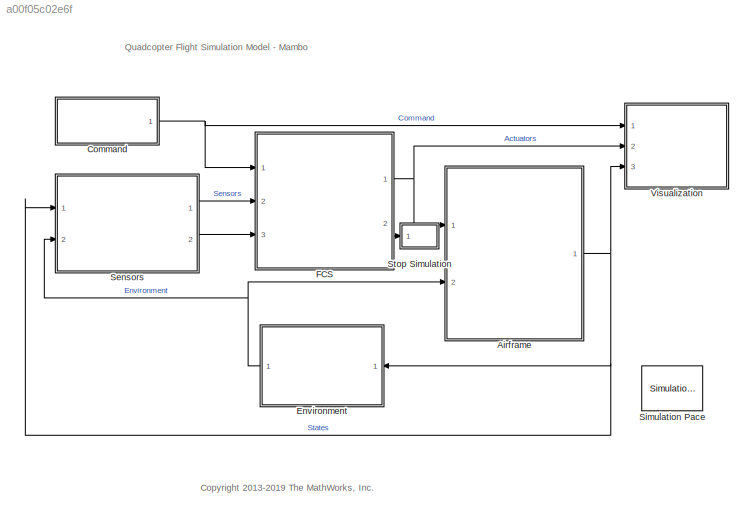
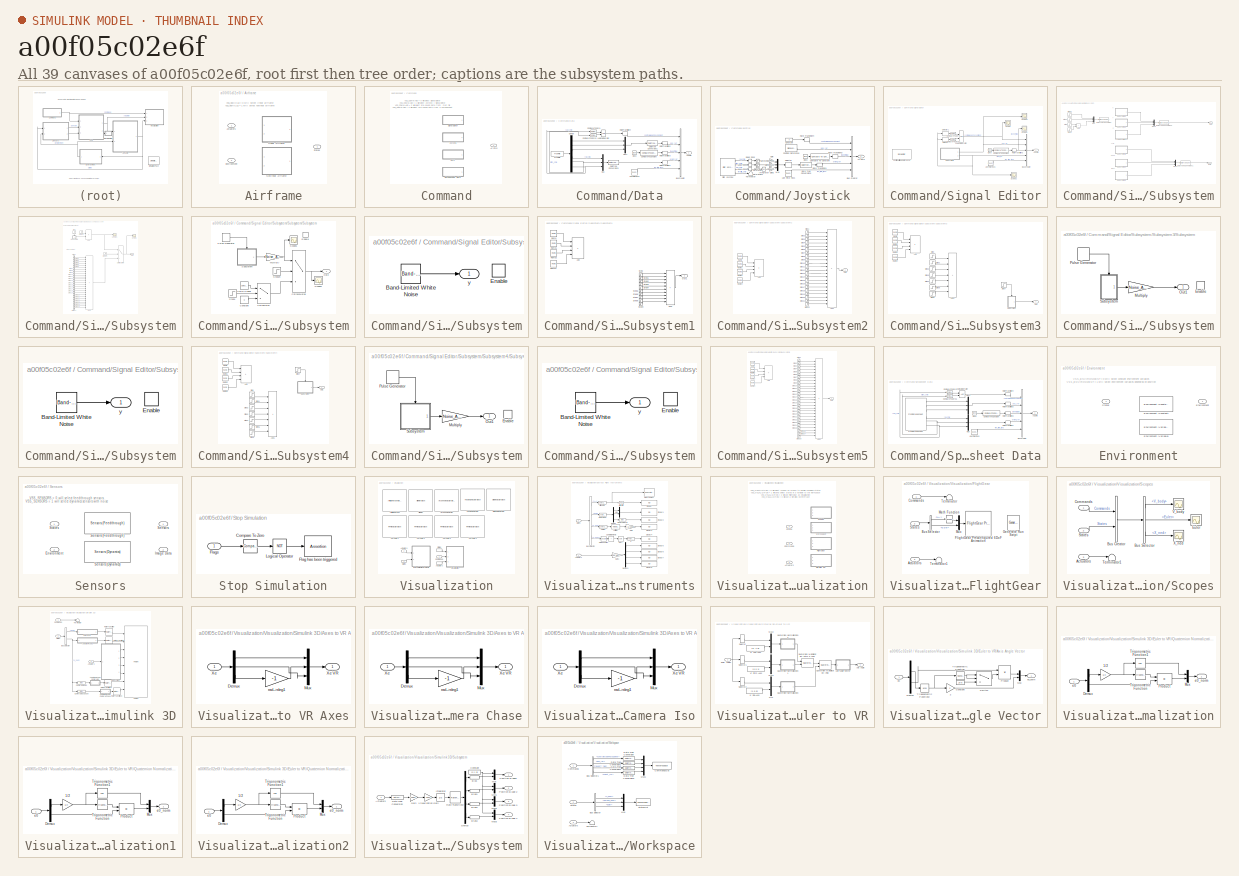
[diagram: thumbnail index - all 39 canvases of the model, root first then tree order]
MODEL slx_a00f05c02e6f
KIND model
CONFIG AbsTol = auto
CONFIG EnableMultiTasking = on
CONFIG FixedStep = Ts
CONFIG MaxStep = auto
CONFIG MinStep = auto
CONFIG RelTol = 1e-3
CONFIG SampleTimeConstraint = Unconstrained
CONFIG SolverName = ode3
CONFIG StartTime = 0
CONFIG StopTime = 70
BLOCK [SubSystem] Airframe
  Ports = [2, 1]
  RequestExecContextInheritance = off
  Variant = on
BLOCK [Inport] Airframe/Actuators
BLOCK [Inport] Airframe/Environment
  OutDataTypeStr = Bus: EnvironmentBus
  Port = 2
BLOCK [ModelReference] Airframe/Linear Airframe
  ModelNameDialog = linearAirframe.slx
  ModelReferenceVersion = 1.41
  Ports = [2, 1]
  VariantControl = VSS_VEHICLE_LINEAR
BLOCK [ModelReference] Airframe/Nonlinear Airframe
  ModelNameDialog = nonlinearAirframe.slx
  ModelReferenceVersion = 1.151
  Ports = [2, 1]
  VariantControl = VSS_VEHICLE_NONLINEAR
BLOCK [Outport] Airframe/States
  OutDataTypeStr = Bus: StatesBus
  VectorParamsAs1DForOutWhenUnconnected = off
BLOCK [SubSystem] Command
  Ports = [0, 1]
  RequestExecContextInheritance = off
  Variant = on
BLOCK [Outport] Command/AC Cmd
  OutDataTypeStr = Bus: CommandBus
  VectorParamsAs1DForOutWhenUnconnected = off
BLOCK [SubSystem] Command/Data
  Ports = [0, 1]
  RequestExecContextInheritance = off
  VariantControl = VSS_COMMAND_PRESAVED
BLOCK [Outport] Command/Data/AC Cmd
  OutDataTypeStr = Bus: CommandBus
  VectorParamsAs1DForOutWhenUnconnected = off
BLOCK [BusCreator] Command/Data/Bus Creator
  DisplayOption = bar
  InheritFromInputs = on
  Inputs = 5
  NonVirtualBus = on
  OutDataTypeStr = Bus: CommandBus
  Ports = [5, 1]
BLOCK [Clock] Command/Data/Clock
BLOCK [Reference] Command/Data/Compare To Constant  REF=simulink/Logic and Bit
Operations/Compare
To Constant
  Ports = [1, 1]
  SourceBlock = simulink/Logic and Bit\nOperations/Compare\nTo Constant
  SourceProductBaseCode = SL
  SourceType = Compare To Constant
BLOCK [Reference] Command/Data/Compare To Zero  REF=simulink/Logic and Bit
Operations/Compare
To Zero
  Ports = [1, 1]
  SourceBlock = simulink/Logic and Bit\nOperations/Compare\nTo Zero
  SourceProductBaseCode = SL
  SourceType = Compare To Zero
BLOCK [Reference] Command/Data/Compare To Zero1  REF=simulink/Logic and Bit
Operations/Compare
To Zero
  Ports = [1, 1]
  SourceBlock = simulink/Logic and Bit\nOperations/Compare\nTo Zero
  SourceProductBaseCode = SL
  SourceType = Compare To Zero
BLOCK [DataTypeConversion] Command/Data/Data Type Conversion1
  OutDataTypeStr = single
  RndMeth = Floor
  SaturateOnIntegerOverflow = off
BLOCK [DataTypeConversion] Command/Data/Data Type Conversion3
  OutDataTypeStr = single
  RndMeth = Floor
  SaturateOnIntegerOverflow = off
BLOCK [Demux] Command/Data/Demux
  Outputs = 6
  Ports = [1, 6]
BLOCK [FromFile] Command/Data/From File
  FileName = cmdData.mat
  SampleTime = Ts
BLOCK [Reference] Command/Data/Live Time Ticks  REF=simulink/Sources/Counter
Free-Running
  Ports = [0, 1]
  SourceBlock = simulink/Sources/Counter\nFree-Running
  SourceProductBaseCode = SL
  SourceType = Counter Free-Running
BLOCK [Logic] Command/Data/Logical Operator
  AllPortsSameDT = off
  IconShape = distinctive
  OutDataTypeStr = boolean
  Ports = [2, 1]
BLOCK [Mux] Command/Data/Mux
  DisplayOption = bar
  Inputs = 3
  Ports = [3, 1]
BLOCK [Mux] Command/Data/Mux1
  DisplayOption = bar
  Inputs = 3
  Ports = [3, 1]
BLOCK [RateTransition] Command/Data/Rate Transition1
  OutPortSampleTime = Ts
BLOCK [RateTransition] Command/Data/Rate Transition2
  OutPortSampleTime = Ts
BLOCK [RateTransition] Command/Data/Rate Transition3
  OutPortSampleTime = Ts
BLOCK [RateTransition] Command/Data/Rate Transition4
  OutPortSampleTime = Ts
BLOCK [SubSystem] Command/Joystick
  Ports = [0, 1]
  RequestExecContextInheritance = off
  VariantControl = VSS_COMMAND_JOYSTICK
BLOCK [Outport] Command/Joystick/AC Cmd
  OutDataTypeStr = Bus: CommandBus
  VectorParamsAs1DForOutWhenUnconnected = off
BLOCK [BusCreator] Command/Joystick/Bus Creator
  DisplayOption = bar
  InheritFromInputs = on
  Inputs = 5
  NonVirtualBus = on
  OutDataTypeStr = Bus: CommandBus
  Ports = [5, 1]
BLOCK [Clock] Command/Joystick/Clock
BLOCK [Reference] Command/Joystick/Compare To Constant  REF=simulink/Logic and Bit
Operations/Compare
To Constant
  Ports = [1, 1]
  SourceBlock = simulink/Logic and Bit\nOperations/Compare\nTo Constant
  SourceProductBaseCode = SL
  SourceType = Compare To Constant
BLOCK [Constant] Command/Joystick/Constant
  OutDataTypeStr = boolean
  Value = 0
BLOCK [DataTypeConversion] Command/Joystick/Data Type Conversion3
  OutDataTypeStr = single
  RndMeth = Floor
  SaturateOnIntegerOverflow = off
BLOCK [DeadZone] Command/Joystick/Dead Zone
  LowerValue = Command.rollDeadZoneStart
  UpperValue = Command.rollDeadZoneEnd
BLOCK [DeadZone] Command/Joystick/Dead Zone1
  LowerValue = Command.pitchDeadZoneStart
  UpperValue = Command.pitchDeadZoneEnd
BLOCK [DeadZone] Command/Joystick/Dead Zone2
  LowerValue = Command.yawDeadZoneStart
  UpperValue = Command.yawDeadZoneEnd
BLOCK [Gain] Command/Joystick/Gain
  Gain = Command.rollGain
BLOCK [Gain] Command/Joystick/Gain1
  Gain = Command.pitchGain
BLOCK [Gain] Command/Joystick/Gain2
  Gain = Command.yawGain
BLOCK [Integrator] Command/Joystick/Integrator
  Ports = [1, 1]
BLOCK [Reference] Command/Joystick/Live Time Ticks  REF=simulink/Sources/Counter
Free-Running
  Ports = [0, 1]
  SourceBlock = simulink/Sources/Counter\nFree-Running
  SourceProductBaseCode = SL
  SourceType = Counter Free-Running
BLOCK [Mux] Command/Joystick/Mux
  DisplayOption = bar
  Inputs = 3
  Ports = [3, 1]
BLOCK [Reference] Command/Joystick/Pilot Joystick  REF=aerolibanimutils/Pilot Joystick
  Ports = [0, 4]
  SourceBlock = aerolibanimutils/Pilot Joystick
  SourceProductBaseCode = AE
  SourceType = PilotJoystick
BLOCK [Reference] Command/Joystick/Position Reference  REF=SignalEditorBlockLib/Signal Editor
  Ports = [0, 1]
  SourceBlock = SignalEditorBlockLib/Signal Editor
  SourceProductBaseCode = SL
  SourceType = SignalEditor
  UserDataPersistent = on
BLOCK [RateTransition] Command/Joystick/Rate Transition1
  OutPortSampleTime = Ts
BLOCK [RateTransition] Command/Joystick/Rate Transition3
  OutPortSampleTime = Ts
BLOCK [RateTransition] Command/Joystick/Rate Transition4
  OutPortSampleTime = Ts
BLOCK [Saturate] Command/Joystick/Saturation
  LowerLimit = Command.rollSatLower
  UpperLimit = Command.rollSatUpper
BLOCK [Saturate] Command/Joystick/Saturation1
  LowerLimit = Command.pitchSatLower
  UpperLimit = Command.pitchSatUpper
BLOCK [Saturate] Command/Joystick/Saturation2
  LowerLimit = Command.yawSatLower
  UpperLimit = Command.yawSatUpper
BLOCK [Selector] Command/Joystick/Selector
  IndexOptions = Index vector (dialog)
  Indices = [3 2 1]
  InputPortWidth = 3
  OutputSizes = 1
  Ports = [1, 1]
BLOCK [Terminator] Command/Joystick/Terminator
BLOCK [SubSystem] Command/Signal Editor
  Ports = [0, 1]
  RequestExecContextInheritance = off
  VariantControl = VSS_COMMAND_SIGEDIT
BLOCK [Outport] Command/Signal Editor/AC Cmd
  OutDataTypeStr = Bus: CommandBus
  VectorParamsAs1DForOutWhenUnconnected = off
BLOCK [BusCreator] Command/Signal Editor/Bus Creator
  DisplayOption = bar
  InheritFromInputs = on
  Inputs = 5
  NonVirtualBus = on
  OutDataTypeStr = Bus: CommandBus
  Ports = [5, 1]
BLOCK [Clock] Command/Signal Editor/Clock
BLOCK [Reference] Command/Signal Editor/Compare To Constant  REF=simulink/Logic and Bit
Operations/Compare
To Constant
  Ports = [1, 1]
  SourceBlock = simulink/Logic and Bit\nOperations/Compare\nTo Constant
  SourceProductBaseCode = SL
  SourceType = Compare To Constant
BLOCK [Reference] Command/Signal Editor/Compare To Zero  REF=simulink/Logic and Bit
Operations/Compare
To Zero
  Ports = [1, 1]
  SourceBlock = simulink/Logic and Bit\nOperations/Compare\nTo Zero
  SourceProductBaseCode = SL
  SourceType = Compare To Zero
BLOCK [Reference] Command/Signal Editor/Compare To Zero1  REF=simulink/Logic and Bit
Operations/Compare
To Zero
  Ports = [1, 1]
  SourceBlock = simulink/Logic and Bit\nOperations/Compare\nTo Zero
  SourceProductBaseCode = SL
  SourceType = Compare To Zero
BLOCK [Reference] Command/Signal Editor/Live Time Ticks  REF=simulink/Sources/Counter
Free-Running
  Ports = [0, 1]
  SourceBlock = simulink/Sources/Counter\nFree-Running
  SourceProductBaseCode = SL
  SourceType = Counter Free-Running
BLOCK [Logic] Command/Signal Editor/Logical Operator
  AllPortsSameDT = off
  OutDataTypeStr = boolean
  Ports = [2, 1]
BLOCK [Reference] Command/Signal Editor/Position//Attitude Reference  REF=SignalEditorBlockLib/Signal Editor
  Commented = on
  Ports = [0, 2]
  SourceBlock = SignalEditorBlockLib/Signal Editor
  SourceProductBaseCode = SL
  SourceType = SignalEditor
  UserDataPersistent = on
BLOCK [RateTransition] Command/Signal Editor/Rate Transition3
  OutPortSampleTime = Ts
BLOCK [Scope] Command/Signal Editor/Scope
  Floating = off
  NumInputPorts = 1
  Ports = [1]
  ScopeSpecificationString = Simulink.scopes.TimeScopeBlockCfg('CurrentConfiguration', extmgr.ConfigurationSet(extmgr.Configuration('Core','General UI',true),extmgr.Configuration('Core','Source UI',true),extmgr.Configuration('Sources','WiredSimulink',true,'DataLoggingVariableName','ScopeData1'),extmgr.Configuration('Visuals','Time Domain',true,'SerializedDisplays',{struct('MinYLimReal','-0.125','MaxYLimReal','1.125','YLabelRe...<+1415ch>
BLOCK [Scope] Command/Signal Editor/Scope1
  Floating = off
  NumInputPorts = 1
  Ports = [1]
  ScopeSpecificationString = Simulink.scopes.TimeScopeBlockCfg('CurrentConfiguration', extmgr.ConfigurationSet(extmgr.Configuration('Core','General UI',true),extmgr.Configuration('Core','Source UI',true),extmgr.Configuration('Sources','WiredSimulink',true,'DataLoggingVariableName','ScopeData2'),extmgr.Configuration('Visuals','Time Domain',true,'SerializedDisplays',{struct('MinYLimReal','-0.125','MaxYLimReal','1.125','YLabelRe...<+1405ch>
BLOCK [Scope] Command/Signal Editor/Scope2
  Floating = off
  NumInputPorts = 1
  Ports = [1]
  ScopeSpecificationString = Simulink.scopes.TimeScopeBlockCfg('CurrentConfiguration', extmgr.ConfigurationSet(extmgr.Configuration('Core','General UI',true),extmgr.Configuration('Core','Source UI',true),extmgr.Configuration('Sources','WiredSimulink',true,'DataLoggingVariableName','ScopeData1'),extmgr.Configuration('Visuals','Time Domain',true,'SerializedDisplays',{struct('MinYLimReal','-1.52679','MaxYLimReal','0.16964','YLab...<+1447ch>
BLOCK [Scope] Command/Signal Editor/Scope3
  Floating = off
  NumInputPorts = 2
  Ports = [2]
  ScopeSpecificationString = Simulink.scopes.TimeScopeBlockCfg('CurrentConfiguration', extmgr.ConfigurationSet(extmgr.Configuration('Core','General UI',true),extmgr.Configuration('Core','Source UI',true),extmgr.Configuration('Sources','WiredSimulink',true,'DataLoggingVariableName','ScopeData1'),extmgr.Configuration('Visuals','Time Domain',true,'SerializedDisplays',{struct('MinYLimReal','-1.00000','MaxYLimReal','1.00000','YLab...<+1500ch>
BLOCK [Selector] Command/Signal Editor/Selector
  IndexOptions = Index vector (dialog)
  Indices = 2
  InputPortWidth = 3
  OutputSizes = 1
  Ports = [1, 1]
BLOCK [Selector] Command/Signal Editor/Selector1
  IndexOptions = Index vector (dialog)
  Indices = 3
  InputPortWidth = 3
  OutputSizes = 1
  Ports = [1, 1]
BLOCK [SubSystem] Command/Signal Editor/Subsystem
  Ports = [0, 2]
  RequestExecContextInheritance = off
BLOCK [Sum] Command/Signal Editor/Subsystem/Add
  Commented = on
  IconShape = rectangular
  Ports = [2, 1]
BLOCK [DataTypeConversion] Command/Signal Editor/Subsystem/Data Type Conversion
  Commented = on
  OutDataTypeStr = single
  RndMeth = Floor
  SaturateOnIntegerOverflow = off
BLOCK [DataTypeConversion] Command/Signal Editor/Subsystem/Data Type Conversion1
  OutDataTypeStr = single
  RndMeth = Floor
  SaturateOnIntegerOverflow = off
BLOCK [DataTypeConversion] Command/Signal Editor/Subsystem/Data Type Conversion2
  OutDataTypeStr = single
  RndMeth = Floor
  SaturateOnIntegerOverflow = off
BLOCK [Mux] Command/Signal Editor/Subsystem/Mux
  Commented = on
  DisplayOption = bar
  Inputs = 3
  Ports = [3, 1]
BLOCK [Mux] Command/Signal Editor/Subsystem/Mux1
  DisplayOption = bar
  Inputs = 3
  Ports = [3, 1]
BLOCK [Mux] Command/Signal Editor/Subsystem/Mux2
  DisplayOption = bar
  Inputs = 3
  Ports = [3, 1]
BLOCK [Outport] Command/Signal Editor/Subsystem/Out1
BLOCK [Outport] Command/Signal Editor/Subsystem/Out2
  Port = 2
BLOCK [Step] Command/Signal Editor/Subsystem/Step
  After = Desp_XYZ(3)
  Commented = on
  SampleTime = 0
  Time = Time_Trans(2)
BLOCK [Step] Command/Signal Editor/Subsystem/Step1
  After = 0
  Commented = on
  SampleTime = 0
  Time = 0
BLOCK [Step] Command/Signal Editor/Subsystem/Step2
  After = 0
  Commented = on
  SampleTime = 0
  Time = 0
BLOCK [Step] Command/Signal Editor/Subsystem/Step6
  After = -1.5
  Commented = on
  SampleTime = 0
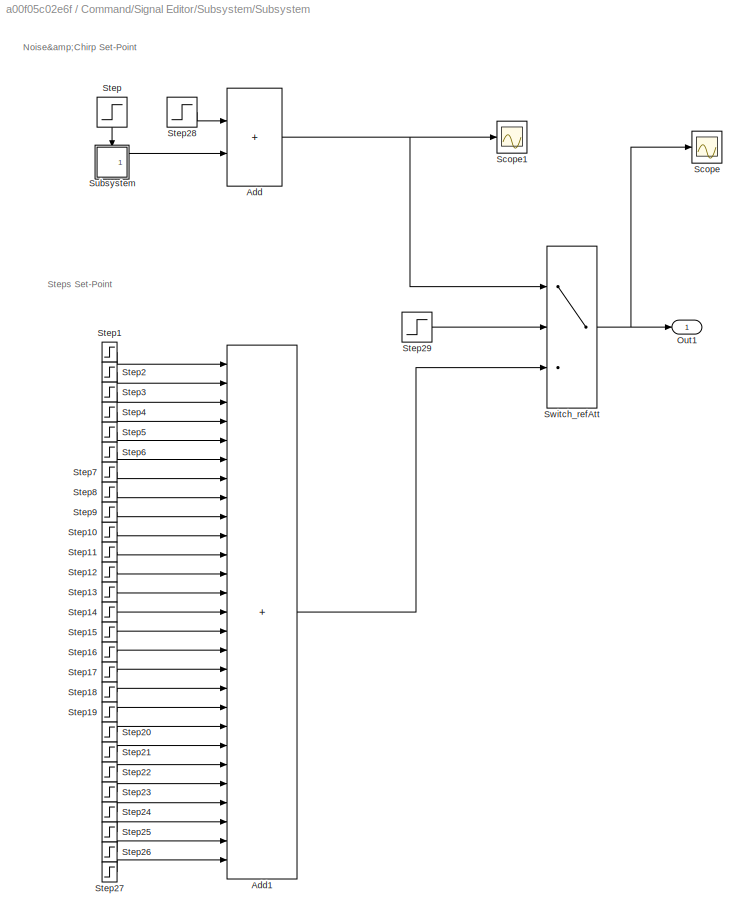
BLOCK [SubSystem] Command/Signal Editor/Subsystem/Subsystem
  Ports = [0, 1]
  RequestExecContextInheritance = off
BLOCK [Sum] Command/Signal Editor/Subsystem/Subsystem/Add
  IconShape = rectangular
  Ports = [2, 1]
BLOCK [Sum] Command/Signal Editor/Subsystem/Subsystem/Add1
  IconShape = rectangular
  Inputs = +++++++++++++++++++++++++++
  Ports = [27, 1]
BLOCK [Outport] Command/Signal Editor/Subsystem/Subsystem/Out1
BLOCK [Scope] Command/Signal Editor/Subsystem/Subsystem/Scope
  Floating = off
  NumInputPorts = 1
  Ports = [1]
  ScopeSpecificationString = Simulink.scopes.TimeScopeBlockCfg('CurrentConfiguration', extmgr.ConfigurationSet(extmgr.Configuration('Core','General UI',true),extmgr.Configuration('Core','Source UI',true),extmgr.Configuration('Sources','WiredSimulink',true,'DataLoggingVariableName','ScopeData1'),extmgr.Configuration('Visuals','Time Domain',true,'SerializedDisplays',{struct('MinYLimReal','-1.48349','MaxYLimReal','0.16483','YLab...<+1391ch>
BLOCK [Scope] Command/Signal Editor/Subsystem/Subsystem/Scope1
  Floating = off
  NumInputPorts = 1
  Ports = [1]
  ScopeSpecificationString = Simulink.scopes.TimeScopeBlockCfg('CurrentConfiguration', extmgr.ConfigurationSet(extmgr.Configuration('Core','General UI',true),extmgr.Configuration('Core','Source UI',true),extmgr.Configuration('Sources','WiredSimulink',true,'DataLoggingVariableName','ScopeData2'),extmgr.Configuration('Visuals','Time Domain',true,'SerializedDisplays',{struct('MinYLimReal','-2.06304','MaxYLimReal','0.22923','YLab...<+1362ch>
BLOCK [Step] Command/Signal Editor/Subsystem/Subsystem/Step
  NameLocation = left
  SampleTime = 0
  Time = 5
BLOCK [Step] Command/Signal Editor/Subsystem/Subsystem/Step1
  After = Z_init
  SampleTime = 0
BLOCK [Step] Command/Signal Editor/Subsystem/Subsystem/Step10
  After = steps_Z(9)
  SampleTime = 0
  Time = time_stepsZ(9)
BLOCK [Step] Command/Signal Editor/Subsystem/Subsystem/Step11
  After = steps_Z(10)
  SampleTime = 0
  Time = time_stepsZ(10)
BLOCK [Step] Command/Signal Editor/Subsystem/Subsystem/Step12
  After = steps_Z(11)
  SampleTime = 0
  Time = time_stepsZ(11)
BLOCK [Step] Command/Signal Editor/Subsystem/Subsystem/Step13
  After = steps_Z(12)
  SampleTime = 0
  Time = time_stepsZ(12)
BLOCK [Step] Command/Signal Editor/Subsystem/Subsystem/Step14
  After = steps_Z(13)
  SampleTime = 0
  Time = time_stepsZ(13)
BLOCK [Step] Command/Signal Editor/Subsystem/Subsystem/Step15
  After = steps_Z(14)
  SampleTime = 0
  Time = time_stepsZ(14)
BLOCK [Step] Command/Signal Editor/Subsystem/Subsystem/Step16
  After = steps_Z(15)
  SampleTime = 0
  Time = time_stepsZ(15)
BLOCK [Step] Command/Signal Editor/Subsystem/Subsystem/Step17
  After = steps_Z(16)
  SampleTime = 0
  Time = time_stepsZ(16)
BLOCK [Step] Command/Signal Editor/Subsystem/Subsystem/Step18
  After = steps_Z(17)
  SampleTime = 0
  Time = time_stepsZ(17)
BLOCK [Step] Command/Signal Editor/Subsystem/Subsystem/Step19
  After = steps_Z(18)
  SampleTime = 0
  Time = time_stepsZ(18)
BLOCK [Step] Command/Signal Editor/Subsystem/Subsystem/Step2
  After = steps_Z(1)
  SampleTime = 0
  Time = time_stepsZ(1)
BLOCK [Step] Command/Signal Editor/Subsystem/Subsystem/Step20
  After = steps_Z(19)
  SampleTime = 0
  Time = time_stepsZ(19)
BLOCK [Step] Command/Signal Editor/Subsystem/Subsystem/Step21
  After = steps_Z(20)
  SampleTime = 0
  Time = time_stepsZ(20)
BLOCK [Step] Command/Signal Editor/Subsystem/Subsystem/Step22
  After = steps_Z(21)
  SampleTime = 0
  Time = time_stepsZ(21)
BLOCK [Step] Command/Signal Editor/Subsystem/Subsystem/Step23
  After = steps_Z(22)
  SampleTime = 0
  Time = time_stepsZ(22)
BLOCK [Step] Command/Signal Editor/Subsystem/Subsystem/Step24
  After = steps_Z(23)
  Time = time_stepsZ(23)
BLOCK [Step] Command/Signal Editor/Subsystem/Subsystem/Step25
  After = steps_Z(24)
  Time = time_stepsZ(24)
BLOCK [Step] Command/Signal Editor/Subsystem/Subsystem/Step26
  After = steps_Z(25)
  Time = time_stepsZ(25)
BLOCK [Step] Command/Signal Editor/Subsystem/Subsystem/Step27
  After = steps_Z(26)
  Time = time_stepsZ(26)
BLOCK [Step] Command/Signal Editor/Subsystem/Subsystem/Step28
  After = Z_init
  SampleTime = 0
BLOCK [Step] Command/Signal Editor/Subsystem/Subsystem/Step29
  After = Z_Tesp
  SampleTime = 0
  Time = 0
BLOCK [Step] Command/Signal Editor/Subsystem/Subsystem/Step3
  After = steps_Z(2)
  SampleTime = 0
  Time = time_stepsZ(2)
BLOCK [Step] Command/Signal Editor/Subsystem/Subsystem/Step4
  After = steps_Z(3)
  SampleTime = 0
  Time = time_stepsZ(3)
BLOCK [Step] Command/Signal Editor/Subsystem/Subsystem/Step5
  After = steps_Z(4)
  SampleTime = 0
  Time = time_stepsZ(4)
BLOCK [Step] Command/Signal Editor/Subsystem/Subsystem/Step6
  After = steps_Z(5)
  SampleTime = 0
  Time = time_stepsZ(5)
BLOCK [Step] Command/Signal Editor/Subsystem/Subsystem/Step7
  After = steps_Z(6)
  SampleTime = 0
  Time = time_stepsZ(6)
BLOCK [Step] Command/Signal Editor/Subsystem/Subsystem/Step8
  After = steps_Z(7)
  SampleTime = 0
  Time = time_stepsZ(7)
BLOCK [Step] Command/Signal Editor/Subsystem/Subsystem/Step9
  After = steps_Z(8)
  SampleTime = 0
  Time = time_stepsZ(8)
BLOCK [SubSystem] Command/Signal Editor/Subsystem/Subsystem/Subsystem
  Ports = [0, 1, 1]
  RequestExecContextInheritance = off
BLOCK [Reference] Command/Signal Editor/Subsystem/Subsystem/Subsystem/Chirp Signal  REF=simulink/Sources/Chirp Signal
  Ports = [0, 1]
  SourceBlock = simulink/Sources/Chirp Signal
  SourceProductBaseCode = SL
  SourceType = chirp
BLOCK [Switch] Command/Signal Editor/Subsystem/Subsystem/Subsystem/ChirpFinish
  Criteria = u2 > Threshold
  InputSameDT = off
  SaturateOnIntegerOverflow = off
BLOCK [Switch] Command/Signal Editor/Subsystem/Subsystem/Subsystem/ChirpvsNoise
  Criteria = u2 > Threshold
  InputSameDT = off
  SaturateOnIntegerOverflow = off
BLOCK [Constant] Command/Signal Editor/Subsystem/Subsystem/Subsystem/Constant
  Value = 0
BLOCK [EnablePort] Command/Signal Editor/Subsystem/Subsystem/Subsystem/Enable
  Ports = []
BLOCK [Gain] Command/Signal Editor/Subsystem/Subsystem/Subsystem/Multiply
  Gain = Noise_Amplitude
BLOCK [Outport] Command/Signal Editor/Subsystem/Subsystem/Subsystem/Out2
BLOCK [DiscretePulseGenerator] Command/Signal Editor/Subsystem/Subsystem/Subsystem/Pulse Generator
  Period = Noise_Time
  PhaseDelay = 10
  Ports = [0, 1]
  PulseType = Time based
  PulseWidth = 40
BLOCK [Scope] Command/Signal Editor/Subsystem/Subsystem/Subsystem/Scope1
  Floating = off
  NumInputPorts = 1
  Ports = [1]
  ScopeSpecificationString = Simulink.scopes.TimeScopeBlockCfg('CurrentConfiguration', extmgr.ConfigurationSet(extmgr.Configuration('Core','General UI',true),extmgr.Configuration('Core','Source UI',true),extmgr.Configuration('Sources','WiredSimulink',true,'DataLoggingVariableName','ScopeData1'),extmgr.Configuration('Visuals','Time Domain',true,'SerializedDisplays',{struct('MinYLimReal','-0.40206','MaxYLimReal','0.432','YLabel...<+1386ch>
BLOCK [Scope] Command/Signal Editor/Subsystem/Subsystem/Subsystem/Scope2
  Floating = off
  NumInputPorts = 1
  Ports = [1]
  ScopeSpecificationString = Simulink.scopes.TimeScopeBlockCfg('CurrentConfiguration', extmgr.ConfigurationSet(extmgr.Configuration('Core','General UI',true),extmgr.Configuration('Core','Source UI',true),extmgr.Configuration('Sources','WiredSimulink',true,'DataLoggingVariableName','ScopeData3'),extmgr.Configuration('Visuals','Time Domain',true,'SerializedDisplays',{struct('MinYLimReal','-0.40206','MaxYLimReal','0.432','YLabel...<+1363ch>
BLOCK [Step] Command/Signal Editor/Subsystem/Subsystem/Subsystem/Step1
  After = 0
  Before = 1
  SampleTime = 0
  Time = Target_Time
BLOCK [Step] Command/Signal Editor/Subsystem/Subsystem/Subsystem/Step29
  After = Noise_Chirp
  SampleTime = 0
  Time = 5
BLOCK [SubSystem] Command/Signal Editor/Subsystem/Subsystem/Subsystem/Subsystem
  Ports = [0, 1, 1]
  RequestExecContextInheritance = off
BLOCK [Reference] Command/Signal Editor/Subsystem/Subsystem/Subsystem/Subsystem/Band-Limited White Noise  REF=simulink/Sources/Band-Limited
White Noise
  Ports = [0, 1]
  SourceBlock = simulink/Sources/Band-Limited\nWhite Noise
  SourceProductBaseCode = SL
  SourceType = Band-Limited White Noise.
BLOCK [EnablePort] Command/Signal Editor/Subsystem/Subsystem/Subsystem/Subsystem/Enable
  Ports = []
BLOCK [Outport] Command/Signal Editor/Subsystem/Subsystem/Subsystem/Subsystem/y
BLOCK [Switch] Command/Signal Editor/Subsystem/Subsystem/Switch_refAtt
  Criteria = u2 > Threshold
  InputSameDT = off
  SaturateOnIntegerOverflow = off
BLOCK [SubSystem] Command/Signal Editor/Subsystem/Subsystem1
  Ports = [0, 1]
  RequestExecContextInheritance = off
BLOCK [Sum] Command/Signal Editor/Subsystem/Subsystem1/Add
  Commented = on
  IconShape = rectangular
  Inputs = ++++
  Ports = [4, 1]
BLOCK [Outport] Command/Signal Editor/Subsystem/Subsystem1/Out1
BLOCK [Reference] Command/Signal Editor/Subsystem/Subsystem1/Ramp  REF=simulink/Sources/Ramp
  Commented = on
  Ports = [0, 1]
  SourceBlock = simulink/Sources/Ramp
  SourceProductBaseCode = SL
  SourceType = Ramp
BLOCK [Reference] Command/Signal Editor/Subsystem/Subsystem1/Ramp1  REF=simulink/Sources/Ramp
  Commented = on
  Ports = [0, 1]
  SourceBlock = simulink/Sources/Ramp
  SourceProductBaseCode = SL
  SourceType = Ramp
BLOCK [Reference] Command/Signal Editor/Subsystem/Subsystem1/Ramp2  REF=simulink/Sources/Ramp
  Commented = on
  Ports = [0, 1]
  SourceBlock = simulink/Sources/Ramp
  SourceProductBaseCode = SL
  SourceType = Ramp
BLOCK [Reference] Command/Signal Editor/Subsystem/Subsystem1/Ramp4  REF=simulink/Sources/Ramp
  Commented = on
  Ports = [0, 1]
  SourceBlock = simulink/Sources/Ramp
  SourceProductBaseCode = SL
  SourceType = Ramp
BLOCK [Step] Command/Signal Editor/Subsystem/Subsystem1/Step
  After = steps_Y(1)
  SampleTime = 0
  Time = time_stepsY(1)
BLOCK [Step] Command/Signal Editor/Subsystem/Subsystem1/Step1
  After = steps_Y(2)
  SampleTime = 0
  Time = time_stepsY(2)
BLOCK [Step] Command/Signal Editor/Subsystem/Subsystem1/Step2
  After = steps_Y(3)
  SampleTime = 0
  Time = time_stepsY(3)
BLOCK [Step] Command/Signal Editor/Subsystem/Subsystem1/Step3
  After = steps_Y(4)
  SampleTime = 0
  Time = time_stepsY(4)
BLOCK [Step] Command/Signal Editor/Subsystem/Subsystem1/Step4
  After = steps_Y(5)
  SampleTime = 0
  Time = time_stepsY(5)
BLOCK [Step] Command/Signal Editor/Subsystem/Subsystem1/Step5
  After = steps_Y(6)
  SampleTime = 0
  Time = time_stepsY(6)
BLOCK [Step] Command/Signal Editor/Subsystem/Subsystem1/Step6
  After = steps_Y(7)
  SampleTime = 0
  Time = time_stepsY(7)
BLOCK [Step] Command/Signal Editor/Subsystem/Subsystem1/Step7
  After = steps_Y(8)
  SampleTime = 0
  Time = time_stepsY(8)
BLOCK [Step] Command/Signal Editor/Subsystem/Subsystem1/Step8
  After = steps_Y(9)
  SampleTime = 0
  Time = time_stepsY(9)
BLOCK [Step] Command/Signal Editor/Subsystem/Subsystem1/Step9
  After = steps_Y(10)
  SampleTime = 0
  Time = time_stepsY(10)
BLOCK [Sum] Command/Signal Editor/Subsystem/Subsystem1/Sum
  IconShape = rectangular
  Inputs = |++++++++++
  Ports = [10, 1]
BLOCK [SubSystem] Command/Signal Editor/Subsystem/Subsystem2
  Ports = [0, 1]
  RequestExecContextInheritance = off
BLOCK [Sum] Command/Signal Editor/Subsystem/Subsystem2/Add
  Commented = on
  IconShape = rectangular
  Inputs = ++++
  Ports = [4, 1]
BLOCK [Sum] Command/Signal Editor/Subsystem/Subsystem2/Add1
  IconShape = rectangular
  Inputs = ++++++++++++++++++++++
  Ports = [22, 1]
BLOCK [Outport] Command/Signal Editor/Subsystem/Subsystem2/Out1
BLOCK [Reference] Command/Signal Editor/Subsystem/Subsystem2/Ramp  REF=simulink/Sources/Ramp
  Commented = on
  Ports = [0, 1]
  SourceBlock = simulink/Sources/Ramp
  SourceProductBaseCode = SL
  SourceType = Ramp
BLOCK [Reference] Command/Signal Editor/Subsystem/Subsystem2/Ramp1  REF=simulink/Sources/Ramp
  Commented = on
  Ports = [0, 1]
  SourceBlock = simulink/Sources/Ramp
  SourceProductBaseCode = SL
  SourceType = Ramp
BLOCK [Reference] Command/Signal Editor/Subsystem/Subsystem2/Ramp2  REF=simulink/Sources/Ramp
  Commented = on
  Ports = [0, 1]
  SourceBlock = simulink/Sources/Ramp
  SourceProductBaseCode = SL
  SourceType = Ramp
BLOCK [Reference] Command/Signal Editor/Subsystem/Subsystem2/Ramp4  REF=simulink/Sources/Ramp
  Commented = on
  Ports = [0, 1]
  SourceBlock = simulink/Sources/Ramp
  SourceProductBaseCode = SL
  SourceType = Ramp
BLOCK [Step] Command/Signal Editor/Subsystem/Subsystem2/Step1
  After = steps_X(1)
  SampleTime = 0
  Time = time_stepsX(1)
BLOCK [Step] Command/Signal Editor/Subsystem/Subsystem2/Step10
  After = steps_X(10)
  SampleTime = 0
  Time = time_stepsX(10)
BLOCK [Step] Command/Signal Editor/Subsystem/Subsystem2/Step11
  After = steps_X(11)
  SampleTime = 0
  Time = time_stepsX(11)
BLOCK [Step] Command/Signal Editor/Subsystem/Subsystem2/Step12
  After = steps_X(12)
  SampleTime = 0
  Time = time_stepsX(12)
BLOCK [Step] Command/Signal Editor/Subsystem/Subsystem2/Step13
  After = steps_X(13)
  SampleTime = 0
  Time = time_stepsX(13)
BLOCK [Step] Command/Signal Editor/Subsystem/Subsystem2/Step14
  After = steps_X(14)
  SampleTime = 0
  Time = time_stepsX(14)
BLOCK [Step] Command/Signal Editor/Subsystem/Subsystem2/Step15
  After = steps_X(15)
  SampleTime = 0
  Time = time_stepsX(15)
BLOCK [Step] Command/Signal Editor/Subsystem/Subsystem2/Step16
  After = steps_X(16)
  SampleTime = 0
  Time = time_stepsX(16)
BLOCK [Step] Command/Signal Editor/Subsystem/Subsystem2/Step17
  After = steps_X(17)
  SampleTime = 0
  Time = time_stepsX(17)
BLOCK [Step] Command/Signal Editor/Subsystem/Subsystem2/Step18
  After = steps_X(18)
  SampleTime = 0
  Time = time_stepsX(18)
BLOCK [Step] Command/Signal Editor/Subsystem/Subsystem2/Step19
  After = steps_X(19)
  SampleTime = 0
  Time = time_stepsX(19)
BLOCK [Step] Command/Signal Editor/Subsystem/Subsystem2/Step2
  After = steps_X(2)
  SampleTime = 0
  Time = time_stepsX(2)
BLOCK [Step] Command/Signal Editor/Subsystem/Subsystem2/Step20
  After = steps_X(20)
  SampleTime = 0
  Time = time_stepsX(20)
BLOCK [Step] Command/Signal Editor/Subsystem/Subsystem2/Step21
  After = steps_X(21)
  SampleTime = 0
  Time = time_stepsX(21)
BLOCK [Step] Command/Signal Editor/Subsystem/Subsystem2/Step22
  After = steps_X(22)
  SampleTime = 0
  Time = time_stepsX(22)
BLOCK [Step] Command/Signal Editor/Subsystem/Subsystem2/Step3
  After = steps_X(3)
  SampleTime = 0
  Time = time_stepsX(3)
BLOCK [Step] Command/Signal Editor/Subsystem/Subsystem2/Step4
  After = steps_X(4)
  SampleTime = 0
  Time = time_stepsX(4)
BLOCK [Step] Command/Signal Editor/Subsystem/Subsystem2/Step5
  After = steps_X(5)
  SampleTime = 0
  Time = time_stepsX(5)
BLOCK [Step] Command/Signal Editor/Subsystem/Subsystem2/Step6
  After = steps_X(6)
  SampleTime = 0
  Time = time_stepsX(6)
BLOCK [Step] Command/Signal Editor/Subsystem/Subsystem2/Step7
  After = steps_X(7)
  SampleTime = 0
  Time = time_stepsX(7)
BLOCK [Step] Command/Signal Editor/Subsystem/Subsystem2/Step8
  After = steps_X(8)
  SampleTime = 0
  Time = time_stepsX(8)
BLOCK [Step] Command/Signal Editor/Subsystem/Subsystem2/Step9
  After = steps_X(9)
  SampleTime = 0
  Time = time_stepsX(9)
BLOCK [SubSystem] Command/Signal Editor/Subsystem/Subsystem3
  Ports = [0, 1]
  RequestExecContextInheritance = off
BLOCK [Sum] Command/Signal Editor/Subsystem/Subsystem3/Add
  Commented = on
  IconShape = rectangular
  Inputs = ++++
  Ports = [4, 1]
BLOCK [Sum] Command/Signal Editor/Subsystem/Subsystem3/Add1
  Commented = on
  IconShape = rectangular
  Inputs = +++++++
  Ports = [7, 1]
BLOCK [Outport] Command/Signal Editor/Subsystem/Subsystem3/Out1
BLOCK [Reference] Command/Signal Editor/Subsystem/Subsystem3/Ramp  REF=simulink/Sources/Ramp
  Commented = on
  Ports = [0, 1]
  SourceBlock = simulink/Sources/Ramp
  SourceProductBaseCode = SL
  SourceType = Ramp
BLOCK [Reference] Command/Signal Editor/Subsystem/Subsystem3/Ramp1  REF=simulink/Sources/Ramp
  Commented = on
  Ports = [0, 1]
  SourceBlock = simulink/Sources/Ramp
  SourceProductBaseCode = SL
  SourceType = Ramp
BLOCK [Reference] Command/Signal Editor/Subsystem/Subsystem3/Ramp2  REF=simulink/Sources/Ramp
  Commented = on
  Ports = [0, 1]
  SourceBlock = simulink/Sources/Ramp
  SourceProductBaseCode = SL
  SourceType = Ramp
BLOCK [Reference] Command/Signal Editor/Subsystem/Subsystem3/Ramp4  REF=simulink/Sources/Ramp
  Commented = on
  Ports = [0, 1]
  SourceBlock = simulink/Sources/Ramp
  SourceProductBaseCode = SL
  SourceType = Ramp
BLOCK [Step] Command/Signal Editor/Subsystem/Subsystem3/Step
  After = 0
  Commented = on
  SampleTime = 0
  Time = 5
BLOCK [Step] Command/Signal Editor/Subsystem/Subsystem3/Step1
  After = steps_Roll(2)
  Commented = on
  SampleTime = 0
  Time = 20
BLOCK [Step] Command/Signal Editor/Subsystem/Subsystem3/Step2
  After = steps_Roll(3)
  Commented = on
  SampleTime = 0
  Time = 35
BLOCK [Step] Command/Signal Editor/Subsystem/Subsystem3/Step3
  After = steps_Roll(4)
  Commented = on
  SampleTime = 0
  Time = 50
BLOCK [Step] Command/Signal Editor/Subsystem/Subsystem3/Step4
  After = steps_Roll(5)
  Commented = on
  SampleTime = 0
  Time = 65
BLOCK [Step] Command/Signal Editor/Subsystem/Subsystem3/Step5
  After = steps_Roll(6)
  Commented = on
  SampleTime = 0
  Time = 80
BLOCK [Step] Command/Signal Editor/Subsystem/Subsystem3/Step6
  After = steps_Roll(7)
  Commented = on
  SampleTime = 0
  Time = 95
BLOCK [Step] Command/Signal Editor/Subsystem/Subsystem3/Step7
  After = Roll_Noise
  Commented = on
  SampleTime = 0
  Time = 5
BLOCK [SubSystem] Command/Signal Editor/Subsystem/Subsystem3/Subsystem
  Commented = on
  Ports = [0, 1, 1]
  RequestExecContextInheritance = off
BLOCK [EnablePort] Command/Signal Editor/Subsystem/Subsystem3/Subsystem/Enable
  Ports = []
BLOCK [Gain] Command/Signal Editor/Subsystem/Subsystem3/Subsystem/Multiply
  Gain = Noise_Amplitude
BLOCK [Outport] Command/Signal Editor/Subsystem/Subsystem3/Subsystem/Out1
BLOCK [DiscretePulseGenerator] Command/Signal Editor/Subsystem/Subsystem3/Subsystem/Pulse Generator
  Period = Noise_Time
  PhaseDelay = 10
  Ports = [0, 1]
  PulseType = Time based
  PulseWidth = 40
BLOCK [SubSystem] Command/Signal Editor/Subsystem/Subsystem3/Subsystem/Subsystem
  Ports = [0, 1, 1]
  RequestExecContextInheritance = off
BLOCK [Reference] Command/Signal Editor/Subsystem/Subsystem3/Subsystem/Subsystem/Band-Limited White Noise  REF=simulink/Sources/Band-Limited
White Noise
  Ports = [0, 1]
  SourceBlock = simulink/Sources/Band-Limited\nWhite Noise
  SourceProductBaseCode = SL
  SourceType = Band-Limited White Noise.
BLOCK [EnablePort] Command/Signal Editor/Subsystem/Subsystem3/Subsystem/Subsystem/Enable
  Ports = []
BLOCK [Outport] Command/Signal Editor/Subsystem/Subsystem3/Subsystem/Subsystem/y
BLOCK [SubSystem] Command/Signal Editor/Subsystem/Subsystem4
  Ports = [0, 1]
  RequestExecContextInheritance = off
BLOCK [Sum] Command/Signal Editor/Subsystem/Subsystem4/Add
  Commented = on
  IconShape = rectangular
  Inputs = ++++
  Ports = [4, 1]
BLOCK [Sum] Command/Signal Editor/Subsystem/Subsystem4/Add1
  Commented = on
  IconShape = rectangular
  Inputs = +++++++
  Ports = [7, 1]
BLOCK [Outport] Command/Signal Editor/Subsystem/Subsystem4/Out1
BLOCK [Reference] Command/Signal Editor/Subsystem/Subsystem4/Ramp  REF=simulink/Sources/Ramp
  Commented = on
  Ports = [0, 1]
  SourceBlock = simulink/Sources/Ramp
  SourceProductBaseCode = SL
  SourceType = Ramp
BLOCK [Reference] Command/Signal Editor/Subsystem/Subsystem4/Ramp1  REF=simulink/Sources/Ramp
  Commented = on
  Ports = [0, 1]
  SourceBlock = simulink/Sources/Ramp
  SourceProductBaseCode = SL
  SourceType = Ramp
BLOCK [Reference] Command/Signal Editor/Subsystem/Subsystem4/Ramp2  REF=simulink/Sources/Ramp
  Commented = on
  Ports = [0, 1]
  SourceBlock = simulink/Sources/Ramp
  SourceProductBaseCode = SL
  SourceType = Ramp
BLOCK [Reference] Command/Signal Editor/Subsystem/Subsystem4/Ramp4  REF=simulink/Sources/Ramp
  Commented = on
  Ports = [0, 1]
  SourceBlock = simulink/Sources/Ramp
  SourceProductBaseCode = SL
  SourceType = Ramp
BLOCK [Step] Command/Signal Editor/Subsystem/Subsystem4/Step
  After = 0
  Commented = on
  SampleTime = 0
  Time = 5
BLOCK [Step] Command/Signal Editor/Subsystem/Subsystem4/Step1
  After = steps_Pitch(2)
  Commented = on
  SampleTime = 0
  Time = 20
BLOCK [Step] Command/Signal Editor/Subsystem/Subsystem4/Step2
  After = steps_Pitch(3)
  Commented = on
  SampleTime = 0
  Time = 35
BLOCK [Step] Command/Signal Editor/Subsystem/Subsystem4/Step3
  After = steps_Pitch(4)
  Commented = on
  SampleTime = 0
  Time = 50
BLOCK [Step] Command/Signal Editor/Subsystem/Subsystem4/Step4
  After = steps_Pitch(5)
  Commented = on
  SampleTime = 0
  Time = 65
BLOCK [Step] Command/Signal Editor/Subsystem/Subsystem4/Step5
  After = steps_Pitch(6)
  Commented = on
  SampleTime = 0
  Time = 80
BLOCK [Step] Command/Signal Editor/Subsystem/Subsystem4/Step6
  After = steps_Pitch(7)
  Commented = on
  SampleTime = 0
  Time = 95
BLOCK [Step] Command/Signal Editor/Subsystem/Subsystem4/Step7
  After = Pitch_Noise
  Commented = on
  SampleTime = 0
  Time = 5
BLOCK [SubSystem] Command/Signal Editor/Subsystem/Subsystem4/Subsystem
  Commented = on
  Ports = [0, 1, 1]
  RequestExecContextInheritance = off
BLOCK [EnablePort] Command/Signal Editor/Subsystem/Subsystem4/Subsystem/Enable
  Ports = []
BLOCK [Gain] Command/Signal Editor/Subsystem/Subsystem4/Subsystem/Multiply
  Gain = Noise_Amplitude
BLOCK [Outport] Command/Signal Editor/Subsystem/Subsystem4/Subsystem/Out1
BLOCK [DiscretePulseGenerator] Command/Signal Editor/Subsystem/Subsystem4/Subsystem/Pulse Generator
  Period = Noise_Time
  PhaseDelay = 10
  Ports = [0, 1]
  PulseType = Time based
  PulseWidth = 40
BLOCK [SubSystem] Command/Signal Editor/Subsystem/Subsystem4/Subsystem/Subsystem
  Ports = [0, 1, 1]
  RequestExecContextInheritance = off
BLOCK [Reference] Command/Signal Editor/Subsystem/Subsystem4/Subsystem/Subsystem/Band-Limited White Noise  REF=simulink/Sources/Band-Limited
White Noise
  Ports = [0, 1]
  SourceBlock = simulink/Sources/Band-Limited\nWhite Noise
  SourceProductBaseCode = SL
  SourceType = Band-Limited White Noise.
BLOCK [EnablePort] Command/Signal Editor/Subsystem/Subsystem4/Subsystem/Subsystem/Enable
  Ports = []
BLOCK [Outport] Command/Signal Editor/Subsystem/Subsystem4/Subsystem/Subsystem/y
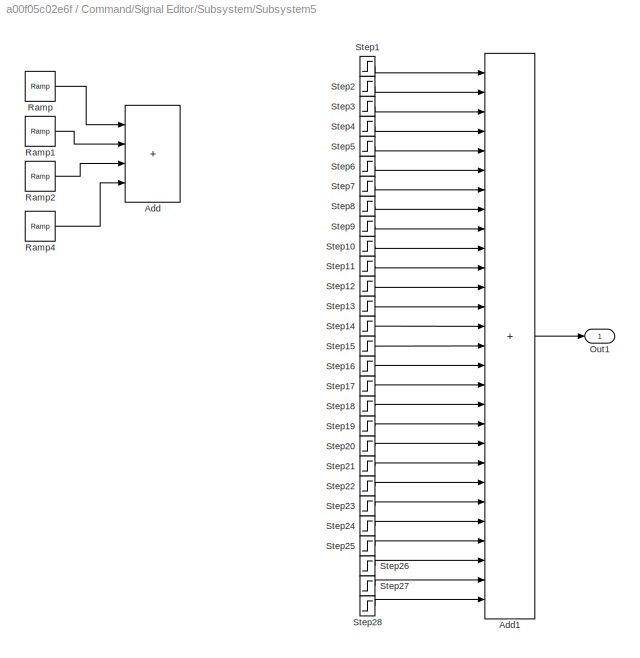
BLOCK [SubSystem] Command/Signal Editor/Subsystem/Subsystem5
  Ports = [0, 1]
  RequestExecContextInheritance = off
BLOCK [Sum] Command/Signal Editor/Subsystem/Subsystem5/Add
  Commented = on
  IconShape = rectangular
  Inputs = ++++
  Ports = [4, 1]
BLOCK [Sum] Command/Signal Editor/Subsystem/Subsystem5/Add1
  IconShape = rectangular
  Inputs = ++++++++++++++++++++++++++++
  Ports = [28, 1]
BLOCK [Outport] Command/Signal Editor/Subsystem/Subsystem5/Out1
BLOCK [Reference] Command/Signal Editor/Subsystem/Subsystem5/Ramp  REF=simulink/Sources/Ramp
  Commented = on
  Ports = [0, 1]
  SourceBlock = simulink/Sources/Ramp
  SourceProductBaseCode = SL
  SourceType = Ramp
BLOCK [Reference] Command/Signal Editor/Subsystem/Subsystem5/Ramp1  REF=simulink/Sources/Ramp
  Commented = on
  Ports = [0, 1]
  SourceBlock = simulink/Sources/Ramp
  SourceProductBaseCode = SL
  SourceType = Ramp
BLOCK [Reference] Command/Signal Editor/Subsystem/Subsystem5/Ramp2  REF=simulink/Sources/Ramp
  Commented = on
  Ports = [0, 1]
  SourceBlock = simulink/Sources/Ramp
  SourceProductBaseCode = SL
  SourceType = Ramp
BLOCK [Reference] Command/Signal Editor/Subsystem/Subsystem5/Ramp4  REF=simulink/Sources/Ramp
  Commented = on
  Ports = [0, 1]
  SourceBlock = simulink/Sources/Ramp
  SourceProductBaseCode = SL
  SourceType = Ramp
BLOCK [Step] Command/Signal Editor/Subsystem/Subsystem5/Step1
  After = steps_Yaw(1)
  SampleTime = 0
  Time = time_stepsYaw(1)
BLOCK [Step] Command/Signal Editor/Subsystem/Subsystem5/Step10
  After = steps_Yaw(10)
  SampleTime = 0
  Time = time_stepsYaw(10)
BLOCK [Step] Command/Signal Editor/Subsystem/Subsystem5/Step11
  After = steps_Yaw(11)
  SampleTime = 0
  Time = time_stepsYaw(11)
BLOCK [Step] Command/Signal Editor/Subsystem/Subsystem5/Step12
  After = steps_Yaw(12)
  SampleTime = 0
  Time = time_stepsYaw(12)
BLOCK [Step] Command/Signal Editor/Subsystem/Subsystem5/Step13
  After = steps_Yaw(13)
  SampleTime = 0
  Time = time_stepsYaw(13)
BLOCK [Step] Command/Signal Editor/Subsystem/Subsystem5/Step14
  After = steps_Yaw(14)
  SampleTime = 0
  Time = time_stepsYaw(14)
BLOCK [Step] Command/Signal Editor/Subsystem/Subsystem5/Step15
  After = steps_Yaw(15)
  SampleTime = 0
  Time = time_stepsYaw(15)
BLOCK [Step] Command/Signal Editor/Subsystem/Subsystem5/Step16
  After = steps_Yaw(16)
  SampleTime = 0
  Time = time_stepsYaw(16)
BLOCK [Step] Command/Signal Editor/Subsystem/Subsystem5/Step17
  After = steps_Yaw(17)
  SampleTime = 0
  Time = time_stepsYaw(17)
BLOCK [Step] Command/Signal Editor/Subsystem/Subsystem5/Step18
  After = steps_Yaw(18)
  SampleTime = 0
  Time = time_stepsYaw(18)
BLOCK [Step] Command/Signal Editor/Subsystem/Subsystem5/Step19
  After = steps_Yaw(19)
  SampleTime = 0
  Time = time_stepsYaw(19)
BLOCK [Step] Command/Signal Editor/Subsystem/Subsystem5/Step2
  After = steps_Yaw(2)
  SampleTime = 0
  Time = time_stepsYaw(2)
BLOCK [Step] Command/Signal Editor/Subsystem/Subsystem5/Step20
  After = steps_Yaw(20)
  SampleTime = 0
  Time = time_stepsYaw(20)
BLOCK [Step] Command/Signal Editor/Subsystem/Subsystem5/Step21
  After = steps_Yaw(21)
  SampleTime = 0
  Time = time_stepsYaw(21)
BLOCK [Step] Command/Signal Editor/Subsystem/Subsystem5/Step22
  After = steps_Yaw(22)
  SampleTime = 0
  Time = time_stepsYaw(22)
BLOCK [Step] Command/Signal Editor/Subsystem/Subsystem5/Step23
  After = steps_Yaw(23)
  SampleTime = 0
  Time = time_stepsYaw(23)
BLOCK [Step] Command/Signal Editor/Subsystem/Subsystem5/Step24
  After = steps_Yaw(24)
  SampleTime = 0
  Time = time_stepsYaw(24)
BLOCK [Step] Command/Signal Editor/Subsystem/Subsystem5/Step25
  After = steps_Yaw(25)
  SampleTime = 0
  Time = time_stepsYaw(25)
BLOCK [Step] Command/Signal Editor/Subsystem/Subsystem5/Step26
  After = steps_Yaw(26)
  SampleTime = 0
  Time = time_stepsYaw(26)
BLOCK [Step] Command/Signal Editor/Subsystem/Subsystem5/Step27
  After = steps_Yaw(27)
  SampleTime = 0
  Time = time_stepsYaw(27)
BLOCK [Step] Command/Signal Editor/Subsystem/Subsystem5/Step28
  After = steps_Yaw(28)
  SampleTime = 0
  Time = time_stepsYaw(28)
BLOCK [Step] Command/Signal Editor/Subsystem/Subsystem5/Step3
  After = steps_Yaw(3)
  SampleTime = 0
  Time = time_stepsYaw(3)
BLOCK [Step] Command/Signal Editor/Subsystem/Subsystem5/Step4
  After = steps_Yaw(4)
  SampleTime = 0
  Time = time_stepsYaw(4)
BLOCK [Step] Command/Signal Editor/Subsystem/Subsystem5/Step5
  After = steps_Yaw(5)
  SampleTime = 0
  Time = time_stepsYaw(5)
BLOCK [Step] Command/Signal Editor/Subsystem/Subsystem5/Step6
  After = steps_Yaw(6)
  SampleTime = 0
  Time = time_stepsYaw(6)
BLOCK [Step] Command/Signal Editor/Subsystem/Subsystem5/Step7
  After = steps_Yaw(7)
  SampleTime = 0
  Time = time_stepsYaw(7)
BLOCK [Step] Command/Signal Editor/Subsystem/Subsystem5/Step8
  After = steps_Yaw(8)
  SampleTime = 0
  Time = time_stepsYaw(8)
BLOCK [Step] Command/Signal Editor/Subsystem/Subsystem5/Step9
  After = steps_Yaw(9)
  SampleTime = 0
  Time = time_stepsYaw(9)
BLOCK [SubSystem] Command/Spreadsheet Data
  Ports = [0, 1]
  RequestExecContextInheritance = off
  VariantControl = VSS_COMMAND_SPREADSHEET
BLOCK [Outport] Command/Spreadsheet Data/AC Cmd
  OutDataTypeStr = Bus: CommandBus
  VectorParamsAs1DForOutWhenUnconnected = off
BLOCK [BusCreator] Command/Spreadsheet Data/Bus Creator
  DisplayOption = bar
  InheritFromInputs = on
  Inputs = 5
  NonVirtualBus = on
  OutDataTypeStr = Bus: CommandBus
  Ports = [5, 1]
BLOCK [Clock] Command/Spreadsheet Data/Clock
BLOCK [Reference] Command/Spreadsheet Data/Compare To Constant  REF=simulink/Logic and Bit
Operations/Compare
To Constant
  Ports = [1, 1]
  SourceBlock = simulink/Logic and Bit\nOperations/Compare\nTo Constant
  SourceProductBaseCode = SL
  SourceType = Compare To Constant
BLOCK [Reference] Command/Spreadsheet Data/Compare To Zero  REF=simulink/Logic and Bit
Operations/Compare
To Zero
  Ports = [1, 1]
  SourceBlock = simulink/Logic and Bit\nOperations/Compare\nTo Zero
  SourceProductBaseCode = SL
  SourceType = Compare To Zero
BLOCK [Reference] Command/Spreadsheet Data/Compare To Zero1  REF=simulink/Logic and Bit
Operations/Compare
To Zero
  Ports = [1, 1]
  SourceBlock = simulink/Logic and Bit\nOperations/Compare\nTo Zero
  SourceProductBaseCode = SL
  SourceType = Compare To Zero
BLOCK [FromSpreadsheet] Command/Spreadsheet Data/From Spreadsheet
  FileName = cmdData.xlsx
  OutDataTypeStr = single
  Ports = [0, 6]
  SampleTime = Ts
  SheetName = data
BLOCK [Reference] Command/Spreadsheet Data/Live Time Ticks  REF=simulink/Sources/Counter
Free-Running
  Ports = [0, 1]
  SourceBlock = simulink/Sources/Counter\nFree-Running
  SourceProductBaseCode = SL
  SourceType = Counter Free-Running
BLOCK [Logic] Command/Spreadsheet Data/Logical Operator
  AllPortsSameDT = off
  IconShape = distinctive
  OutDataTypeStr = boolean
  Ports = [2, 1]
BLOCK [Mux] Command/Spreadsheet Data/Mux
  DisplayOption = bar
  Inputs = 3
  Ports = [3, 1]
BLOCK [Mux] Command/Spreadsheet Data/Mux1
  DisplayOption = bar
  Inputs = 3
  Ports = [3, 1]
BLOCK [RateTransition] Command/Spreadsheet Data/Rate Transition1
  OutPortSampleTime = Ts
BLOCK [RateTransition] Command/Spreadsheet Data/Rate Transition2
  OutPortSampleTime = Ts
BLOCK [RateTransition] Command/Spreadsheet Data/Rate Transition3
  OutPortSampleTime = Ts
BLOCK [RateTransition] Command/Spreadsheet Data/Rate Transition4
  OutPortSampleTime = Ts
BLOCK [SubSystem] Environment
  Ports = [1, 1]
  RequestExecContextInheritance = off
  Variant = on
BLOCK [Outport] Environment/Environment
  OutDataTypeStr = Bus: EnvironmentBus
  VectorParamsAs1DForOutWhenUnconnected = off
BLOCK [Reference] Environment/Environment (Constant)  REF=environmentLibrary/Environment (Constant)
  Ports = [1, 1]
  SourceBlock = environmentLibrary/Environment (Constant)
  SourceType = SubSystem
BLOCK [Reference] Environment/Environment (Variable)  REF=environmentLibrary/Environment (Variable)
  Ports = [1, 1]
  SourceBlock = environmentLibrary/Environment (Variable)
  SourceType = SubSystem
BLOCK [Inport] Environment/States
  OutDataTypeStr = Bus: StatesBus
BLOCK [ModelReference] FCS
  ModelNameDialog = flightControlSystem.slx
  ModelReferenceVersion = 2.2
  Ports = [3, 2]
BLOCK [SubSystem] Sensors
  Ports = [2, 2]
  RequestExecContextInheritance = off
  Variant = on
BLOCK [Inport] Sensors/Environment
  Port = 2
BLOCK [Outport] Sensors/Image Data
  Port = 2
  VectorParamsAs1DForOutWhenUnconnected = off
BLOCK [Outport] Sensors/Sensors
  VectorParamsAs1DForOutWhenUnconnected = off
BLOCK [Reference] Sensors/Sensors (Dynamics)  REF=sensorsLibrary/Sensors (Dynamics)
  Ports = [2, 2]
  SourceBlock = sensorsLibrary/Sensors (Dynamics)
BLOCK [Reference] Sensors/Sensors (Feedthrough)  REF=sensorsLibrary/Sensors (Feedthrough)
  Ports = [2, 2]
  SourceBlock = sensorsLibrary/Sensors (Feedthrough)
  SourceType = SubSystem
BLOCK [Inport] Sensors/States
BLOCK [Reference] Simulation Pace  REF=aerolibanimutils/Simulation Pace
  AttributesFormatString = %<SimulationPace> sec/sec
  Commented = on
  Ports = []
  SourceBlock = aerolibanimutils/Simulation Pace
  SourceProductBaseCode = AE
  SourceType = Simulation Pace
BLOCK [SubSystem] Stop Simulation
  Ports = [1]
  RequestExecContextInheritance = off
BLOCK [Reference] Stop Simulation/Compare To Zero  REF=simulink/Logic and Bit
Operations/Compare
To Zero
  Ports = [1, 1]
  SourceBlock = simulink/Logic and Bit\nOperations/Compare\nTo Zero
  SourceProductBaseCode = SL
  SourceType = Compare To Zero
BLOCK [Assertion] Stop Simulation/Flag has been triggered
BLOCK [Inport] Stop Simulation/Flags
  OutDataTypeStr = uint8
BLOCK [Logic] Stop Simulation/Logical Operator
  AllPortsSameDT = off
  Operator = NOT
  OutDataTypeStr = boolean
  Ports = [1, 1]
BLOCK [SubSystem] Visualization
  Ports = [3]
  RequestExecContextInheritance = off
BLOCK [Inport] Visualization/Actuators
  Port = 2
BLOCK [InportShadow] Visualization/Actuators 
  Port = 2
BLOCK [AirspeedIndicatorBlock] Visualization/Airspeed Indicator
  LabelPosition = Hide
  ScaleMax = 9
  ScaleMin = 0
BLOCK [AltimeterBlock] Visualization/Altimeter
  LabelPosition = Hide
BLOCK [ArtificialHorizonBlock] Visualization/Artificial Horizon
  LabelPosition = Hide
BLOCK [ClimbIndicatorBlock] Visualization/Climb Rate Indicator
  LabelPosition = Hide
  ScaleMax = 1000
BLOCK [Inport] Visualization/Commands
BLOCK [SubSystem] Visualization/Extract Flight Instruments
  Ports = [2]
  RequestExecContextInheritance = off
BLOCK [Inport] Visualization/Extract Flight Instruments/Actuators
BLOCK [Reference] Visualization/Extract Flight Instruments/Altitude [ft]  REF=aerolibconvert2/Length Conversion
  Ports = [1, 1]
  SourceBlock = aerolibconvert2/Length Conversion
  SourceProductBaseCode = AE
  SourceType = Length Conversion
BLOCK [Selector] Visualization/Extract Flight Instruments/Altitude [m]
  IndexOptions = Index vector (dialog)
  Indices = [3]
  InputPortWidth = 3
  OutputSizes = 1
  Ports = [1, 1]
BLOCK [BusSelector] Visualization/Extract Flight Instruments/Bus Selector
  OutputSignals = LLA,Euler,V_ned,V_body
  Ports = [1, 4]
BLOCK [Bias] Visualization/Extract Flight Instruments/Deg from North
  Bias = Vehicle.PositionOnEarth.FlatEarthToLLA.xAxis
  SaturateOnIntegerOverflow = off
BLOCK [Demux] Visualization/Extract Flight Instruments/Demux
  Outputs = 3
  Ports = [1, 3]
BLOCK [Demux] Visualization/Extract Flight Instruments/Demux1
  Ports = [1, 4]
BLOCK [Display] Visualization/Extract Flight Instruments/Display
  Decimation = 1
  Ports = [1]
BLOCK [Display] Visualization/Extract Flight Instruments/Display1
  Decimation = 1
  Ports = [1]
BLOCK [Display] Visualization/Extract Flight Instruments/Display2
  Decimation = 1
  Ports = [1]
BLOCK [Display] Visualization/Extract Flight Instruments/Display3
  Decimation = 1
  Ports = [1]
BLOCK [Display] Visualization/Extract Flight Instruments/Display4
  Decimation = 1
  Ports = [1]
BLOCK [Display] Visualization/Extract Flight Instruments/Display5
  Decimation = 1
  Ports = [1]
BLOCK [Display] Visualization/Extract Flight Instruments/Display6
  Decimation = 1
  Ports = [1]
BLOCK [Display] Visualization/Extract Flight Instruments/Display7
  Decimation = 1
  Ports = [1]
BLOCK [Display] Visualization/Extract Flight Instruments/Display8
  Decimation = 1
  Ports = [1]
BLOCK [Reference] Visualization/Extract Flight Instruments/Euler [deg]  REF=aerolibconvert2/Angle Conversion
  Ports = [1, 1]
  SourceBlock = aerolibconvert2/Angle Conversion
  SourceProductBaseCode = AE
  SourceType = Angle Conversion
BLOCK [Reference] Visualization/Extract Flight Instruments/Floor contact  REF=simulink/Model
Verification/Check Static 
Lower Bound
  Description = init.posLLA(3) <= u
  Ports = [1]
  SourceBlock = simulink/Model\nVerification/Check Static \nLower Bound
  SourceProductBaseCode = SL
  SourceType = Checks_SMin
BLOCK [Gain] Visualization/Extract Flight Instruments/Gain
  Gain = -1/1000
BLOCK [Gain] Visualization/Extract Flight Instruments/Gain1
  Gain = 100/Vehicle.Motor.maxLimit*[1 -1 1 -1]
BLOCK [Math] Visualization/Extract Flight Instruments/Math Function
  Operator = square
  Ports = [1, 1]
  SignedPower = on
BLOCK [Mux] Visualization/Extract Flight Instruments/Mux
  DisplayOption = bar
  Inputs = 2
  Ports = [2, 1]
BLOCK [Sqrt] Visualization/Extract Flight Instruments/Sqrt
BLOCK [Inport] Visualization/Extract Flight Instruments/States
  Port = 2
BLOCK [Sum] Visualization/Extract Flight Instruments/Sum of Elements
  IconShape = rectangular
  Inputs = +
  Ports = [1, 1]
BLOCK [Reference] Visualization/Extract Flight Instruments/V  REF=aerolibconvert2/Velocity Conversion
  Ports = [1, 1]
  SourceBlock = aerolibconvert2/Velocity Conversion
  SourceProductBaseCode = AE
  SourceType = Velocity Conversion
BLOCK [Reference] Visualization/Extract Flight Instruments/Vd [ft//min]  REF=aerolibconvert2/Velocity Conversion
  Ports = [1, 1]
  SourceBlock = aerolibconvert2/Velocity Conversion
  SourceProductBaseCode = AE
  SourceType = Velocity Conversion
BLOCK [Selector] Visualization/Extract Flight Instruments/Vd [m//s]
  IndexOptions = Index vector (dialog)
  Indices = [3]
  InputPortWidth = 3
  OutputSizes = 1
  Ports = [1, 1]
BLOCK [HeadingIndicatorBlock] Visualization/Heading Indicator
  LabelPosition = Hide
BLOCK [Inport] Visualization/States
  Port = 3
BLOCK [InportShadow] Visualization/States 
  Port = 3
BLOCK [RPMIndicatorBlock] Visualization/Thruster 1
  LabelPosition = Hide
BLOCK [RPMIndicatorBlock] Visualization/Thruster 2
  LabelPosition = Hide
BLOCK [RPMIndicatorBlock] Visualization/Thruster 3
  LabelPosition = Hide
BLOCK [RPMIndicatorBlock] Visualization/Thruster 4
  LabelPosition = Hide
BLOCK [SubSystem] Visualization/Visualization
  Commented = on
  Ports = [3]
  RequestExecContextInheritance = off
  Variant = on
BLOCK [Inport] Visualization/Visualization/Actuators
  Port = 3
BLOCK [Inport] Visualization/Visualization/Commands
  OutDataTypeStr = Bus: CommandBus
  Port = 2
BLOCK [SubSystem] Visualization/Visualization/FlightGear
  Ports = [3]
  RequestExecContextInheritance = off
  VariantControl = VSS_VISUALIZATION_FLIGHTGEAR
BLOCK [Inport] Visualization/Visualization/FlightGear/Actuators
  Port = 3
BLOCK [BusSelector] Visualization/Visualization/FlightGear/Bus Selector
  OutputSignals = LLA,Euler
  Ports = [1, 2]
BLOCK [Inport] Visualization/Visualization/FlightGear/Commands
BLOCK [Reference] Visualization/Visualization/FlightGear/FlightGear Preconfigured 6DoF Animation  REF=aerolibfltsims/FlightGear
Preconfigured
6DoF Animation
  AttributesFormatString = Version Selected: %<xFlightGearVersion>
  Ports = [1]
  SourceBlock = aerolibfltsims/FlightGear\nPreconfigured\n6DoF Animation
  SourceProductBaseCode = AE
  SourceType = FlightGearQuick6DoFAnimation
BLOCK [Reference] Visualization/Visualization/FlightGear/Generate Run Script  REF=aerolibfltsims/Generate
Run Script
  Ports = []
  SourceBlock = aerolibfltsims/Generate\nRun Script
  SourceProductBaseCode = AE
  SourceType = Generate FlightGear Run Script
BLOCK [Math] Visualization/Visualization/FlightGear/Math Function
  Operator = transpose
  Ports = [1, 1]
  SignedPower = on
BLOCK [Mux] Visualization/Visualization/FlightGear/Mux
  DisplayOption = bar
  Inputs = 2
  Ports = [2, 1]
BLOCK [Inport] Visualization/Visualization/FlightGear/States
  Port = 2
BLOCK [Terminator] Visualization/Visualization/FlightGear/Terminator
BLOCK [Terminator] Visualization/Visualization/FlightGear/Terminator1
BLOCK [SubSystem] Visualization/Visualization/Scopes
  Ports = [3]
  RequestExecContextInheritance = off
  VariantControl = VSS_VISUALIZATION_SCOPES
BLOCK [Inport] Visualization/Visualization/Scopes/Actuators
  Port = 3
BLOCK [BusCreator] Visualization/Visualization/Scopes/Bus Creator
  DisplayOption = bar
  InheritFromInputs = on
  Inputs = 2
  Ports = [2, 1]
BLOCK [BusSelector] Visualization/Visualization/Scopes/Bus Selector
  OutputSignals = States.V_body,States.Euler,States.X_ned
  Ports = [1, 3]
BLOCK [Inport] Visualization/Visualization/Scopes/Commands
BLOCK [Scope] Visualization/Visualization/Scopes/Euler
  Floating = off
  NumInputPorts = 1
  Ports = [1]
  ScopeSpecificationString = Simulink.scopes.TimeScopeBlockCfg('CurrentConfiguration', extmgr.ConfigurationSet(extmgr.Configuration('Core','General UI',true),extmgr.Configuration('Core','Source UI',true),extmgr.Configuration('Sources','WiredSimulink',true,'DataLoggingVariableName','ScopeData2','DataLoggingSaveFormat','StructureWithTime','DataLoggingDecimation','1'),extmgr.Configuration('Visuals','Time Domain',true,'Serialized...<+1593ch>
BLOCK [Inport] Visualization/Visualization/Scopes/States
  Port = 2
BLOCK [Terminator] Visualization/Visualization/Scopes/Terminator1
BLOCK [Scope] Visualization/Visualization/Scopes/V_body
  Floating = off
  NumInputPorts = 1
  Ports = [1]
  ScopeSpecificationString = Simulink.scopes.TimeScopeBlockCfg('CurrentConfiguration', extmgr.ConfigurationSet(extmgr.Configuration('Core','General UI',true),extmgr.Configuration('Core','Source UI',true),extmgr.Configuration('Sources','WiredSimulink',true,'DataLoggingSaveFormat','StructureWithTime','DataLoggingDecimation','1'),extmgr.Configuration('Visuals','Time Domain',true,'SerializedDisplays',{struct('MinYLimReal','-2.968...<+1548ch>
BLOCK [Scope] Visualization/Visualization/Scopes/X_ned
  Floating = off
  NumInputPorts = 1
  Ports = [1]
  ScopeSpecificationString = Simulink.scopes.TimeScopeBlockCfg('CurrentConfiguration', extmgr.ConfigurationSet(extmgr.Configuration('Core','General UI',true),extmgr.Configuration('Core','Source UI',true),extmgr.Configuration('Sources','WiredSimulink',true,'DataLoggingVariableName','ScopeData1','DataLoggingSaveFormat','StructureWithTime','DataLoggingDecimation','1'),extmgr.Configuration('Visuals','Time Domain',true,'Serialized...<+1593ch>
BLOCK [SubSystem] Visualization/Visualization/Simulink 3D
  Ports = [3]
  RequestExecContextInheritance = off
  VariantControl = VSS_VISUALIZATION_SL3D
BLOCK [Inport] Visualization/Visualization/Simulink 3D/Actuators
  Port = 3
BLOCK [SubSystem] Visualization/Visualization/Simulink 3D/Axes to VR Axes
  Ports = [1, 1]
  RequestExecContextInheritance = off
BLOCK [SubSystem] Visualization/Visualization/Simulink 3D/Axes to VR Axes Camera Chase
  Ports = [1, 1]
  RequestExecContextInheritance = off
BLOCK [Demux] Visualization/Visualization/Simulink 3D/Axes to VR Axes Camera Chase/Demux
  DisplayOption = none
  Outputs = 3
  Ports = [1, 3]
BLOCK [Mux] Visualization/Visualization/Simulink 3D/Axes to VR Axes Camera Chase/Mux
  DisplayOption = bar
  Inputs = 3
  Ports = [3, 1]
BLOCK [Inport] Visualization/Visualization/Simulink 3D/Axes to VR Axes Camera Chase/Xe
BLOCK [Outport] Visualization/Visualization/Simulink 3D/Axes to VR Axes Camera Chase/Xe VR
  VectorParamsAs1DForOutWhenUnconnected = off
BLOCK [Gain] Visualization/Visualization/Simulink 3D/Axes to VR Axes Camera Chase/rad-->deg1
  Gain = -1
  NameLocation = top
  OutDataTypeStr = Inherit: Same as input
  ParamDataTypeStr = Inherit: Same as input
  SaturateOnIntegerOverflow = on
BLOCK [SubSystem] Visualization/Visualization/Simulink 3D/Axes to VR Axes Camera Iso
  Ports = [1, 1]
  RequestExecContextInheritance = off
BLOCK [Demux] Visualization/Visualization/Simulink 3D/Axes to VR Axes Camera Iso/Demux
  DisplayOption = none
  Outputs = 3
  Ports = [1, 3]
BLOCK [Mux] Visualization/Visualization/Simulink 3D/Axes to VR Axes Camera Iso/Mux
  DisplayOption = bar
  Inputs = 3
  Ports = [3, 1]
BLOCK [Inport] Visualization/Visualization/Simulink 3D/Axes to VR Axes Camera Iso/Xe
BLOCK [Outport] Visualization/Visualization/Simulink 3D/Axes to VR Axes Camera Iso/Xe VR
  VectorParamsAs1DForOutWhenUnconnected = off
BLOCK [Gain] Visualization/Visualization/Simulink 3D/Axes to VR Axes Camera Iso/rad-->deg1
  Gain = -1
  NameLocation = top
  OutDataTypeStr = Inherit: Same as input
  ParamDataTypeStr = Inherit: Same as input
  SaturateOnIntegerOverflow = on
BLOCK [Demux] Visualization/Visualization/Simulink 3D/Axes to VR Axes/Demux
  DisplayOption = none
  Outputs = 3
  Ports = [1, 3]
BLOCK [Mux] Visualization/Visualization/Simulink 3D/Axes to VR Axes/Mux
  DisplayOption = bar
  Inputs = 3
  Ports = [3, 1]
BLOCK [Inport] Visualization/Visualization/Simulink 3D/Axes to VR Axes/Xe
BLOCK [Outport] Visualization/Visualization/Simulink 3D/Axes to VR Axes/Xe VR
  VectorParamsAs1DForOutWhenUnconnected = off
BLOCK [Gain] Visualization/Visualization/Simulink 3D/Axes to VR Axes/rad-->deg1
  Gain = -1
  NameLocation = top
  OutDataTypeStr = Inherit: Same as input
  ParamDataTypeStr = Inherit: Same as input
  SaturateOnIntegerOverflow = on
BLOCK [BusSelector] Visualization/Visualization/Simulink 3D/Bus Selector
  OutputSignals = Euler,X_ned
  Ports = [1, 2]
BLOCK [Bias] Visualization/Visualization/Simulink 3D/Camera bias Chase
  Bias = [-4 0 -.9558]'
  SaturateOnIntegerOverflow = off
BLOCK [Bias] Visualization/Visualization/Simulink 3D/Camera bias Iso
  Bias = [0.9009 .99 -.6247]'
  SaturateOnIntegerOverflow = off
BLOCK [Inport] Visualization/Visualization/Simulink 3D/Commands
BLOCK [SubSystem] Visualization/Visualization/Simulink 3D/Euler to VR
  Ports = [1, 1]
  RequestExecContextInheritance = off
BLOCK [Outport] Visualization/Visualization/Simulink 3D/Euler to VR/Axis Angle
  VectorParamsAs1DForOutWhenUnconnected = off
BLOCK [SubSystem] Visualization/Visualization/Simulink 3D/Euler to VR/Axis Angle Vector
  Ports = [1, 1]
  RequestExecContextInheritance = off
BLOCK [Gain] Visualization/Visualization/Simulink 3D/Euler to VR/Axis Angle Vector/2
  Gain = 2
  OutDataTypeStr = Inherit: Same as input
  ParamDataTypeStr = Inherit: Same as input
  SaturateOnIntegerOverflow = on
BLOCK [Constant] Visualization/Visualization/Simulink 3D/Euler to VR/Axis Angle Vector/Constant
  Value = 1e-6
BLOCK [Demux] Visualization/Visualization/Simulink 3D/Euler to VR/Axis Angle Vector/Demux
  DisplayOption = none
  Outputs = [1 3 ]
  Ports = [1, 2]
BLOCK [Mux] Visualization/Visualization/Simulink 3D/Euler to VR/Axis Angle Vector/Mux
  DisplayOption = bar
  Inputs = 2
  Ports = [2, 1]
BLOCK [Product] Visualization/Visualization/Simulink 3D/Euler to VR/Axis Angle Vector/Product
  InputSameDT = on
  Inputs = */
  OutDataTypeStr = Inherit: Same as first input
  Ports = [2, 1]
  SaturateOnIntegerOverflow = on
BLOCK [Switch] Visualization/Visualization/Simulink 3D/Euler to VR/Axis Angle Vector/Switch
  Criteria = u2 ~= 0
  InputSameDT = off
  SaturateOnIntegerOverflow = off
BLOCK [Trigonometry] Visualization/Visualization/Simulink 3D/Euler to VR/Axis Angle Vector/Trigonometric Function
  Ports = [1, 1]
BLOCK [Trigonometry] Visualization/Visualization/Simulink 3D/Euler to VR/Axis Angle Vector/Trigonometric Function2
  Operator = acos
  Ports = [1, 1]
BLOCK [Inport] Visualization/Visualization/Simulink 3D/Euler to VR/Axis Angle Vector/e0
BLOCK [Outport] Visualization/Visualization/Simulink 3D/Euler to VR/Axis Angle Vector/e0_norm
  VectorParamsAs1DForOutWhenUnconnected = off
BLOCK [Inport] Visualization/Visualization/Simulink 3D/Euler to VR/Euler Angles
BLOCK [Mux] Visualization/Visualization/Simulink 3D/Euler to VR/Mux
  DisplayOption = bar
  Inputs = 2
  Ports = [2, 1]
BLOCK [Mux] Visualization/Visualization/Simulink 3D/Euler to VR/Mux1
  DisplayOption = bar
  Inputs = 2
  Ports = [2, 1]
BLOCK [Mux] Visualization/Visualization/Simulink 3D/Euler to VR/Mux2
  DisplayOption = bar
  Inputs = 2
  Ports = [2, 1]
BLOCK [Reference] Visualization/Visualization/Simulink 3D/Euler to VR/Quaternion Multiplication (Pitch & Yaw)  REF=aerolibutil/Quaternion
Multiplication
  Ports = [2, 1]
  SourceBlock = aerolibutil/Quaternion\nMultiplication
  SourceProductBaseCode = AE
  SourceType = Quaternion Multiplication
BLOCK [Reference] Visualization/Visualization/Simulink 3D/Euler to VR/Quaternion Multiplication (Roll)  REF=aerolibutil/Quaternion
Multiplication
  Ports = [2, 1]
  SourceBlock = aerolibutil/Quaternion\nMultiplication
  SourceProductBaseCode = AE
  SourceType = Quaternion Multiplication
BLOCK [SubSystem] Visualization/Visualization/Simulink 3D/Euler to VR/Quaternion Normalization
  Ports = [1, 1]
  RequestExecContextInheritance = off
BLOCK [Gain] Visualization/Visualization/Simulink 3D/Euler to VR/Quaternion Normalization/1//2
  Gain = 1/2
  OutDataTypeStr = Inherit: Same as input
  ParamDataTypeStr = Inherit: Same as input
  SaturateOnIntegerOverflow = on
BLOCK [Demux] Visualization/Visualization/Simulink 3D/Euler to VR/Quaternion Normalization/Demux
  DisplayOption = none
  Outputs = [1 3]
  Ports = [1, 2]
BLOCK [Mux] Visualization/Visualization/Simulink 3D/Euler to VR/Quaternion Normalization/Mux
  DisplayOption = bar
  Inputs = 2
  Ports = [2, 1]
BLOCK [Product] Visualization/Visualization/Simulink 3D/Euler to VR/Quaternion Normalization/Product
  InputSameDT = on
  OutDataTypeStr = Inherit: Same as first input
  Ports = [2, 1]
  SaturateOnIntegerOverflow = on
BLOCK [Trigonometry] Visualization/Visualization/Simulink 3D/Euler to VR/Quaternion Normalization/Trigonometric Function
  Ports = [1, 1]
BLOCK [Trigonometry] Visualization/Visualization/Simulink 3D/Euler to VR/Quaternion Normalization/Trigonometric Function1
  Operator = cos
  Ports = [1, 1]
BLOCK [Inport] Visualization/Visualization/Simulink 3D/Euler to VR/Quaternion Normalization/e0
BLOCK [Outport] Visualization/Visualization/Simulink 3D/Euler to VR/Quaternion Normalization/e0_norm
  VectorParamsAs1DForOutWhenUnconnected = off
BLOCK [SubSystem] Visualization/Visualization/Simulink 3D/Euler to VR/Quaternion Normalization1
  Ports = [1, 1]
  RequestExecContextInheritance = off
BLOCK [Gain] Visualization/Visualization/Simulink 3D/Euler to VR/Quaternion Normalization1/1//2
  Gain = 1/2
  OutDataTypeStr = Inherit: Same as input
  ParamDataTypeStr = Inherit: Same as input
  SaturateOnIntegerOverflow = on
BLOCK [Demux] Visualization/Visualization/Simulink 3D/Euler to VR/Quaternion Normalization1/Demux
  DisplayOption = none
  Outputs = [1 3]
  Ports = [1, 2]
BLOCK [Mux] Visualization/Visualization/Simulink 3D/Euler to VR/Quaternion Normalization1/Mux
  DisplayOption = bar
  Inputs = 2
  Ports = [2, 1]
BLOCK [Product] Visualization/Visualization/Simulink 3D/Euler to VR/Quaternion Normalization1/Product
  InputSameDT = on
  OutDataTypeStr = Inherit: Same as first input
  Ports = [2, 1]
  SaturateOnIntegerOverflow = on
BLOCK [Trigonometry] Visualization/Visualization/Simulink 3D/Euler to VR/Quaternion Normalization1/Trigonometric Function
  Ports = [1, 1]
BLOCK [Trigonometry] Visualization/Visualization/Simulink 3D/Euler to VR/Quaternion Normalization1/Trigonometric Function1
  Operator = cos
  Ports = [1, 1]
BLOCK [Inport] Visualization/Visualization/Simulink 3D/Euler to VR/Quaternion Normalization1/e0
BLOCK [Outport] Visualization/Visualization/Simulink 3D/Euler to VR/Quaternion Normalization1/e0_norm
  VectorParamsAs1DForOutWhenUnconnected = off
BLOCK [SubSystem] Visualization/Visualization/Simulink 3D/Euler to VR/Quaternion Normalization2
  Ports = [1, 1]
  RequestExecContextInheritance = off
BLOCK [Gain] Visualization/Visualization/Simulink 3D/Euler to VR/Quaternion Normalization2/1//2
  Gain = 1/2
  OutDataTypeStr = Inherit: Same as input
  ParamDataTypeStr = Inherit: Same as input
  SaturateOnIntegerOverflow = on
BLOCK [Demux] Visualization/Visualization/Simulink 3D/Euler to VR/Quaternion Normalization2/Demux
  DisplayOption = none
  Outputs = [1 3]
  Ports = [1, 2]
BLOCK [Mux] Visualization/Visualization/Simulink 3D/Euler to VR/Quaternion Normalization2/Mux
  DisplayOption = bar
  Inputs = 2
  Ports = [2, 1]
BLOCK [Product] Visualization/Visualization/Simulink 3D/Euler to VR/Quaternion Normalization2/Product
  InputSameDT = on
  OutDataTypeStr = Inherit: Same as first input
  Ports = [2, 1]
  SaturateOnIntegerOverflow = on
BLOCK [Trigonometry] Visualization/Visualization/Simulink 3D/Euler to VR/Quaternion Normalization2/Trigonometric Function
  Ports = [1, 1]
BLOCK [Trigonometry] Visualization/Visualization/Simulink 3D/Euler to VR/Quaternion Normalization2/Trigonometric Function1
  Operator = cos
  Ports = [1, 1]
BLOCK [Inport] Visualization/Visualization/Simulink 3D/Euler to VR/Quaternion Normalization2/e0
BLOCK [Outport] Visualization/Visualization/Simulink 3D/Euler to VR/Quaternion Normalization2/e0_norm
  VectorParamsAs1DForOutWhenUnconnected = off
BLOCK [Selector] Visualization/Visualization/Simulink 3D/Euler to VR/Selector
  IndexOptions = Index vector (dialog)
  Indices = [3]
  InputPortWidth = 3
  OutputSizes = 1
  Ports = [1, 1]
BLOCK [Selector] Visualization/Visualization/Simulink 3D/Euler to VR/Selector1
  IndexOptions = Index vector (dialog)
  Indices = [2]
  InputPortWidth = 3
  OutputSizes = 1
  Ports = [1, 1]
BLOCK [Selector] Visualization/Visualization/Simulink 3D/Euler to VR/Selector2
  IndexOptions = Index vector (dialog)
  Indices = [1]
  InputPortWidth = 3
  OutputSizes = 1
  Ports = [1, 1]
BLOCK [Constant] Visualization/Visualization/Simulink 3D/Euler to VR/Vr Pitch Axes
  NameLocation = top
  Value = [0 0 1]
BLOCK [Constant] Visualization/Visualization/Simulink 3D/Euler to VR/Vr Roll Axes
  NameLocation = top
  Value = [1 0 0]
BLOCK [Constant] Visualization/Visualization/Simulink 3D/Euler to VR/Vr Yaw Axes
  Value = [0 -1 0]
BLOCK [RateTransition] Visualization/Visualization/Simulink 3D/Rate Transition
BLOCK [RateTransition] Visualization/Visualization/Simulink 3D/Rate Transition1
BLOCK [RateTransition] Visualization/Visualization/Simulink 3D/Rate Transition2
BLOCK [RateTransition] Visualization/Visualization/Simulink 3D/Rate Transition3
BLOCK [Inport] Visualization/Visualization/Simulink 3D/States
  Port = 2
BLOCK [SubSystem] Visualization/Visualization/Simulink 3D/Subsystem
  Ports = [1, 4]
  RequestExecContextInheritance = off
BLOCK [Inport] Visualization/Visualization/Simulink 3D/Subsystem/Actuators
BLOCK [Bias] Visualization/Visualization/Simulink 3D/Subsystem/Bias
  Bias = .1
  SaturateOnIntegerOverflow = off
BLOCK [Bias] Visualization/Visualization/Simulink 3D/Subsystem/Bias1
  Bias = -.3
  SaturateOnIntegerOverflow = off
BLOCK [Bias] Visualization/Visualization/Simulink 3D/Subsystem/Bias2
  Bias = .5
  SaturateOnIntegerOverflow = off
BLOCK [Bias] Visualization/Visualization/Simulink 3D/Subsystem/Bias3
  Bias = .7
  SaturateOnIntegerOverflow = off
BLOCK [Constant] Visualization/Visualization/Simulink 3D/Subsystem/Constant
  Value = [0 1 0]
BLOCK [DataTypeConversion] Visualization/Visualization/Simulink 3D/Subsystem/Data Type Conversion
  OutDataTypeStr = double
  RndMeth = Floor
  SaturateOnIntegerOverflow = off
BLOCK [Demux] Visualization/Visualization/Simulink 3D/Subsystem/Demux
  Ports = [1, 4]
BLOCK [Gain] Visualization/Visualization/Simulink 3D/Subsystem/Gain
  Gain = -Vehicle.Motor.commandToW2Gain
BLOCK [Integrator] Visualization/Visualization/Simulink 3D/Subsystem/Integrator
  InitialCondition = [.1  .2 -.3 -.4]
  Ports = [1, 1]
  WrapState = on
  WrappedStateLowerValue = -2*pi
  WrappedStateUpperValue = 2*pi
BLOCK [Mux] Visualization/Visualization/Simulink 3D/Subsystem/Mux
  DisplayOption = bar
  Inputs = 2
  Ports = [2, 1]
BLOCK [Mux] Visualization/Visualization/Simulink 3D/Subsystem/Mux1
  DisplayOption = bar
  Inputs = 2
  Ports = [2, 1]
BLOCK [Mux] Visualization/Visualization/Simulink 3D/Subsystem/Mux2
  DisplayOption = bar
  Inputs = 2
  Ports = [2, 1]
BLOCK [Mux] Visualization/Visualization/Simulink 3D/Subsystem/Mux3
  DisplayOption = bar
  Inputs = 2
  Ports = [2, 1]
BLOCK [Outport] Visualization/Visualization/Simulink 3D/Subsystem/Position Blade 2
  Port = 2
  VectorParamsAs1DForOutWhenUnconnected = off
BLOCK [Outport] Visualization/Visualization/Simulink 3D/Subsystem/Position Blade 3
  Port = 3
  VectorParamsAs1DForOutWhenUnconnected = off
BLOCK [Outport] Visualization/Visualization/Simulink 3D/Subsystem/Position Blade 4
  Port = 4
  VectorParamsAs1DForOutWhenUnconnected = off
BLOCK [Outport] Visualization/Visualization/Simulink 3D/Subsystem/Position Blade1
  VectorParamsAs1DForOutWhenUnconnected = off
BLOCK [RateTransition] Visualization/Visualization/Simulink 3D/Subsystem/Rate Transition2
BLOCK [Gain] Visualization/Visualization/Simulink 3D/Subsystem/Visualization Gain
  Gain = .0001
BLOCK [Terminator] Visualization/Visualization/Simulink 3D/Terminator
BLOCK [Reference] Visualization/Visualization/Simulink 3D/VR Sink  REF=vrlib/VR Sink
  InstantiateOnLoad = on
  Ports = [8]
  SourceBlock = vrlib/VR Sink
  SourceProductBaseCode = SL
  SourceType = Virtual Reality Sink
BLOCK [Inport] Visualization/Visualization/States
  OutDataTypeStr = Bus: StatesBus
BLOCK [SubSystem] Visualization/Visualization/Workspace
  Ports = [3]
  RequestExecContextInheritance = off
  VariantControl = VSS_VISUALIZATION_WORKSPACE
BLOCK [Inport] Visualization/Visualization/Workspace/Actuators
  Port = 3
BLOCK [BusSelector] Visualization/Visualization/Workspace/Bus Selector
  OutputSignals = V_body,Omega_body,Euler
  Ports = [1, 3]
BLOCK [BusSelector] Visualization/Visualization/Workspace/Bus Selector1
  OutputSignals = controlModePosVSOrient,pos_ref,takeoff_flag,orient_ref
  Ports = [1, 4]
BLOCK [Inport] Visualization/Visualization/Workspace/Commands
BLOCK [ToWorkspace] Visualization/Visualization/Workspace/CommandsOut
  MaxDataPoints = inf
  Ports = [1]
  SampleTime = -1
  SaveFormat = Structure With Time
  VariableName = CommandsOut
BLOCK [DataTypeConversion] Visualization/Visualization/Workspace/Data Type Conversion
  OutDataTypeStr = double
  RndMeth = Floor
  SaturateOnIntegerOverflow = off
BLOCK [DataTypeConversion] Visualization/Visualization/Workspace/Data Type Conversion1
  OutDataTypeStr = double
  RndMeth = Floor
  SaturateOnIntegerOverflow = off
BLOCK [DataTypeConversion] Visualization/Visualization/Workspace/Data Type Conversion2
  OutDataTypeStr = double
  RndMeth = Floor
  SaturateOnIntegerOverflow = off
BLOCK [DataTypeConversion] Visualization/Visualization/Workspace/Data Type Conversion3
  OutDataTypeStr = double
  RndMeth = Floor
  SaturateOnIntegerOverflow = off
BLOCK [Mux] Visualization/Visualization/Workspace/Mux
  DisplayOption = bar
  Inputs = 3
  Ports = [3, 1]
BLOCK [Mux] Visualization/Visualization/Workspace/Mux1
  DisplayOption = bar
  Ports = [4, 1]
BLOCK [Inport] Visualization/Visualization/Workspace/States
  Port = 2
BLOCK [ToWorkspace] Visualization/Visualization/Workspace/StatesOut
  MaxDataPoints = inf
  Ports = [1]
  SampleTime = -1
  SaveFormat = Structure With Time
  VariableName = statesOut
BLOCK [Terminator] Visualization/Visualization/Workspace/Terminator1
ANNOTATION (root): <copyright redacted>
ANNOTATION (root): Quadcopter Flight Simulation Model - Mambo
ANNOTATION Airframe: VSS_VEHICLE = 0 will select linear airframe VSS_VEHICLE = 1 will select nonlnear airframe
ANNOTATION Command: VSS_COMMAND = 0 will select Signal Editor VSS_COMMAND = 1 will select Joystick + Signal Editor VSS_COMMAND = 2 will select pre-saved data from .mat file VSS_COMMAND = 3 will select pre-saved data from a spreadsheet
ANNOTATION Command/Signal Editor/Subsystem: PITCH
ANNOTATION Command/Signal Editor/Subsystem: ROLL
ANNOTATION Command/Signal Editor/Subsystem: X
ANNOTATION Command/Signal Editor/Subsystem: Y
ANNOTATION Command/Signal Editor/Subsystem: YAW
ANNOTATION Command/Signal Editor/Subsystem: Z
ANNOTATION Command/Signal Editor/Subsystem/Subsystem: Noise&Chirp Set-Point
ANNOTATION Command/Signal Editor/Subsystem/Subsystem: Steps Set-Point
ANNOTATION Environment: VSS_ENVIRONMENT = 0 will select constant environment variables VSS_ENVIRONMENT = 1 will select environment variables depending on position
ANNOTATION Sensors: VSS_SENSORS = 0 will select feedthrough sensors VSS_SENSORS = 1 will select dynamics sensors with noise
ANNOTATION Visualization/Visualization: VSS_VISUALIZATION = 0 will select scopes as means to visualie variables/states VSS_VISUALIZATION = 1 will send select states in a variable to the workspace VSS_VISUALIZATION = 2 will use FlightGear as visualization VSS_VISUALIZATION = 3 will use a Simulink 3D interface
NET Airframe:1 -> Environment:1, Sensors:1, Visualization:3
LINE Command/Data/Bus Creator:1 -> Command/Data/AC Cmd:1
LINE Command/Data/Clock:1 -> Command/Data/Compare To Constant:1
LINE Command/Data/Compare To Constant:1 -> Command/Data/Rate Transition3:1
LINE Command/Data/Compare To Zero1:1 -> Command/Data/Logical Operator:2
LINE Command/Data/Compare To Zero:1 -> Command/Data/Logical Operator:1
LINE Command/Data/Data Type Conversion1:1 -> Command/Data/Rate Transition2:1
LINE Command/Data/Data Type Conversion3:1 -> Command/Data/Rate Transition1:1
LINE Command/Data/Demux:1 -> Command/Data/Mux1:1
LINE Command/Data/Demux:2 -> Command/Data/Mux1:2
LINE Command/Data/Demux:3 -> Command/Data/Mux1:3
LINE Command/Data/Demux:4 -> Command/Data/Mux:1
NET Command/Data/Demux:5 -> Command/Data/Compare To Zero1:1, Command/Data/Mux:2
NET Command/Data/Demux:6 -> Command/Data/Compare To Zero:1, Command/Data/Mux:3
LINE Command/Data/From File:1 -> Command/Data/Demux:1
LINE Command/Data/Live Time Ticks:1 -> Command/Data/Bus Creator:5
LINE Command/Data/Logical Operator:1 -> Command/Data/Rate Transition4:1
LINE Command/Data/Mux1:1 -> Command/Data/Data Type Conversion1:1
LINE Command/Data/Mux:1 -> Command/Data/Data Type Conversion3:1
LINE Command/Data/Rate Transition1:1 -> Command/Data/Bus Creator:4
LINE Command/Data/Rate Transition2:1 -> Command/Data/Bus Creator:2
LINE Command/Data/Rate Transition3:1 -> Command/Data/Bus Creator:3
LINE Command/Data/Rate Transition4:1 -> Command/Data/Bus Creator:1
LINE Command/Joystick/Bus Creator:1 -> Command/Joystick/AC Cmd:1
LINE Command/Joystick/Clock:1 -> Command/Joystick/Compare To Constant:1
LINE Command/Joystick/Compare To Constant:1 -> Command/Joystick/Rate Transition3:1
LINE Command/Joystick/Constant:1 -> Command/Joystick/Rate Transition4:1
LINE Command/Joystick/Data Type Conversion3:1 -> Command/Joystick/Rate Transition1:1
LINE Command/Joystick/Dead Zone1:1 -> Command/Joystick/Saturation1:1
LINE Command/Joystick/Dead Zone2:1 -> Command/Joystick/Saturation2:1
LINE Command/Joystick/Dead Zone:1 -> Command/Joystick/Saturation:1
LINE Command/Joystick/Gain1:1 -> Command/Joystick/Mux:2
LINE Command/Joystick/Gain2:1 -> Command/Joystick/Mux:3
LINE Command/Joystick/Gain:1 -> Command/Joystick/Mux:1
LINE Command/Joystick/Integrator:1 -> Command/Joystick/Gain2:1
LINE Command/Joystick/Live Time Ticks:1 -> Command/Joystick/Bus Creator:5
LINE Command/Joystick/Mux:1 -> Command/Joystick/Selector:1
LINE Command/Joystick/Pilot Joystick:1 -> Command/Joystick/Dead Zone:1
LINE Command/Joystick/Pilot Joystick:2 -> Command/Joystick/Dead Zone1:1
LINE Command/Joystick/Pilot Joystick:3 -> Command/Joystick/Dead Zone2:1
LINE Command/Joystick/Pilot Joystick:4 -> Command/Joystick/Terminator:1
LINE Command/Joystick/Position Reference:1 -> Command/Joystick/Bus Creator:2
LINE Command/Joystick/Rate Transition1:1 -> Command/Joystick/Bus Creator:4
LINE Command/Joystick/Rate Transition3:1 -> Command/Joystick/Bus Creator:3
LINE Command/Joystick/Rate Transition4:1 -> Command/Joystick/Bus Creator:1
LINE Command/Joystick/Saturation1:1 -> Command/Joystick/Gain1:1
LINE Command/Joystick/Saturation2:1 -> Command/Joystick/Integrator:1
LINE Command/Joystick/Saturation:1 -> Command/Joystick/Gain:1
LINE Command/Joystick/Selector:1 -> Command/Joystick/Data Type Conversion3:1
LINE Command/Signal Editor/Bus Creator:1 -> Command/Signal Editor/AC Cmd:1
LINE Command/Signal Editor/Clock:1 -> Command/Signal Editor/Compare To Constant:1
LINE Command/Signal Editor/Compare To Constant:1 -> Command/Signal Editor/Rate Transition3:1
LINE Command/Signal Editor/Compare To Zero1:1 -> Command/Signal Editor/Logical Operator:2
LINE Command/Signal Editor/Compare To Zero:1 -> Command/Signal Editor/Logical Operator:1
LINE Command/Signal Editor/Live Time Ticks:1 -> Command/Signal Editor/Bus Creator:5
NET Command/Signal Editor/Logical Operator:1 -> Command/Signal Editor/Bus Creator:1, Command/Signal Editor/Scope:1
NET Command/Signal Editor/Rate Transition3:1 -> Command/Signal Editor/Bus Creator:3, Command/Signal Editor/Scope1:1
LINE Command/Signal Editor/Selector1:1 -> Command/Signal Editor/Compare To Zero:1
LINE Command/Signal Editor/Selector:1 -> Command/Signal Editor/Compare To Zero1:1
LINE Command/Signal Editor/Subsystem/Add:1 -> Command/Signal Editor/Subsystem/Mux:3
LINE Command/Signal Editor/Subsystem/Data Type Conversion1:1 -> Command/Signal Editor/Subsystem/Out2:1
LINE Command/Signal Editor/Subsystem/Data Type Conversion2:1 -> Command/Signal Editor/Subsystem/Out1:1
LINE Command/Signal Editor/Subsystem/Mux1:1 -> Command/Signal Editor/Subsystem/Data Type Conversion1:1
LINE Command/Signal Editor/Subsystem/Mux2:1 -> Command/Signal Editor/Subsystem/Data Type Conversion2:1
LINE Command/Signal Editor/Subsystem/Mux:1 -> Command/Signal Editor/Subsystem/Data Type Conversion:1
LINE Command/Signal Editor/Subsystem/Step1:1 -> Command/Signal Editor/Subsystem/Mux:2
LINE Command/Signal Editor/Subsystem/Step2:1 -> Command/Signal Editor/Subsystem/Mux:1
LINE Command/Signal Editor/Subsystem/Step6:1 -> Command/Signal Editor/Subsystem/Add:2
LINE Command/Signal Editor/Subsystem/Step:1 -> Command/Signal Editor/Subsystem/Add:1
LINE Command/Signal Editor/Subsystem/Subsystem/Add1:1 -> Command/Signal Editor/Subsystem/Subsystem/Switch_refAtt:3
NET Command/Signal Editor/Subsystem/Subsystem/Add:1 -> Command/Signal Editor/Subsystem/Subsystem/Scope1:1, Command/Signal Editor/Subsystem/Subsystem/Switch_refAtt:1
LINE Command/Signal Editor/Subsystem/Subsystem/Step10:1 -> Command/Signal Editor/Subsystem/Subsystem/Add1:10
LINE Command/Signal Editor/Subsystem/Subsystem/Step11:1 -> Command/Signal Editor/Subsystem/Subsystem/Add1:11
LINE Command/Signal Editor/Subsystem/Subsystem/Step12:1 -> Command/Signal Editor/Subsystem/Subsystem/Add1:12
LINE Command/Signal Editor/Subsystem/Subsystem/Step13:1 -> Command/Signal Editor/Subsystem/Subsystem/Add1:13
LINE Command/Signal Editor/Subsystem/Subsystem/Step14:1 -> Command/Signal Editor/Subsystem/Subsystem/Add1:14
LINE Command/Signal Editor/Subsystem/Subsystem/Step15:1 -> Command/Signal Editor/Subsystem/Subsystem/Add1:15
LINE Command/Signal Editor/Subsystem/Subsystem/Step16:1 -> Command/Signal Editor/Subsystem/Subsystem/Add1:16
LINE Command/Signal Editor/Subsystem/Subsystem/Step17:1 -> Command/Signal Editor/Subsystem/Subsystem/Add1:17
LINE Command/Signal Editor/Subsystem/Subsystem/Step18:1 -> Command/Signal Editor/Subsystem/Subsystem/Add1:18
LINE Command/Signal Editor/Subsystem/Subsystem/Step19:1 -> Command/Signal Editor/Subsystem/Subsystem/Add1:19
LINE Command/Signal Editor/Subsystem/Subsystem/Step1:1 -> Command/Signal Editor/Subsystem/Subsystem/Add1:1
LINE Command/Signal Editor/Subsystem/Subsystem/Step20:1 -> Command/Signal Editor/Subsystem/Subsystem/Add1:20
LINE Command/Signal Editor/Subsystem/Subsystem/Step21:1 -> Command/Signal Editor/Subsystem/Subsystem/Add1:21
LINE Command/Signal Editor/Subsystem/Subsystem/Step22:1 -> Command/Signal Editor/Subsystem/Subsystem/Add1:22
LINE Command/Signal Editor/Subsystem/Subsystem/Step23:1 -> Command/Signal Editor/Subsystem/Subsystem/Add1:23
LINE Command/Signal Editor/Subsystem/Subsystem/Step24:1 -> Command/Signal Editor/Subsystem/Subsystem/Add1:24
LINE Command/Signal Editor/Subsystem/Subsystem/Step25:1 -> Command/Signal Editor/Subsystem/Subsystem/Add1:25
LINE Command/Signal Editor/Subsystem/Subsystem/Step26:1 -> Command/Signal Editor/Subsystem/Subsystem/Add1:26
LINE Command/Signal Editor/Subsystem/Subsystem/Step27:1 -> Command/Signal Editor/Subsystem/Subsystem/Add1:27
LINE Command/Signal Editor/Subsystem/Subsystem/Step28:1 -> Command/Signal Editor/Subsystem/Subsystem/Add:1
LINE Command/Signal Editor/Subsystem/Subsystem/Step29:1 -> Command/Signal Editor/Subsystem/Subsystem/Switch_refAtt:2
LINE Command/Signal Editor/Subsystem/Subsystem/Step2:1 -> Command/Signal Editor/Subsystem/Subsystem/Add1:2
LINE Command/Signal Editor/Subsystem/Subsystem/Step3:1 -> Command/Signal Editor/Subsystem/Subsystem/Add1:3
LINE Command/Signal Editor/Subsystem/Subsystem/Step4:1 -> Command/Signal Editor/Subsystem/Subsystem/Add1:4
LINE Command/Signal Editor/Subsystem/Subsystem/Step5:1 -> Command/Signal Editor/Subsystem/Subsystem/Add1:5
LINE Command/Signal Editor/Subsystem/Subsystem/Step6:1 -> Command/Signal Editor/Subsystem/Subsystem/Add1:6
LINE Command/Signal Editor/Subsystem/Subsystem/Step7:1 -> Command/Signal Editor/Subsystem/Subsystem/Add1:7
LINE Command/Signal Editor/Subsystem/Subsystem/Step8:1 -> Command/Signal Editor/Subsystem/Subsystem/Add1:8
LINE Command/Signal Editor/Subsystem/Subsystem/Step9:1 -> Command/Signal Editor/Subsystem/Subsystem/Add1:9
LINE Command/Signal Editor/Subsystem/Subsystem/Step:1 -> Command/Signal Editor/Subsystem/Subsystem/Subsystem:enable
LINE Command/Signal Editor/Subsystem/Subsystem/Subsystem/Chirp Signal:1 -> Command/Signal Editor/Subsystem/Subsystem/Subsystem/ChirpFinish:1
LINE Command/Signal Editor/Subsystem/Subsystem/Subsystem/ChirpFinish:1 -> Command/Signal Editor/Subsystem/Subsystem/Subsystem/ChirpvsNoise:3
NET Command/Signal Editor/Subsystem/Subsystem/Subsystem/ChirpvsNoise:1 -> Command/Signal Editor/Subsystem/Subsystem/Subsystem/Out2:1, Command/Signal Editor/Subsystem/Subsystem/Subsystem/Scope2:1
LINE Command/Signal Editor/Subsystem/Subsystem/Subsystem/Constant:1 -> Command/Signal Editor/Subsystem/Subsystem/Subsystem/ChirpFinish:3
NET Command/Signal Editor/Subsystem/Subsystem/Subsystem/Multiply:1 -> Command/Signal Editor/Subsystem/Subsystem/Subsystem/ChirpvsNoise:1, Command/Signal Editor/Subsystem/Subsystem/Subsystem/Scope1:1
LINE Command/Signal Editor/Subsystem/Subsystem/Subsystem/Pulse Generator:1 -> Command/Signal Editor/Subsystem/Subsystem/Subsystem/Subsystem:enable
LINE Command/Signal Editor/Subsystem/Subsystem/Subsystem/Step1:1 -> Command/Signal Editor/Subsystem/Subsystem/Subsystem/ChirpFinish:2
LINE Command/Signal Editor/Subsystem/Subsystem/Subsystem/Step29:1 -> Command/Signal Editor/Subsystem/Subsystem/Subsystem/ChirpvsNoise:2
LINE Command/Signal Editor/Subsystem/Subsystem/Subsystem/Subsystem/Band-Limited White Noise:1 -> Command/Signal Editor/Subsystem/Subsystem/Subsystem/Subsystem/y:1
LINE Command/Signal Editor/Subsystem/Subsystem/Subsystem/Subsystem:1 -> Command/Signal Editor/Subsystem/Subsystem/Subsystem/Multiply:1
LINE Command/Signal Editor/Subsystem/Subsystem/Subsystem:1 -> Command/Signal Editor/Subsystem/Subsystem/Add:2
NET Command/Signal Editor/Subsystem/Subsystem/Switch_refAtt:1 -> Command/Signal Editor/Subsystem/Subsystem/Out1:1, Command/Signal Editor/Subsystem/Subsystem/Scope:1
LINE Command/Signal Editor/Subsystem/Subsystem1/Ramp1:1 -> Command/Signal Editor/Subsystem/Subsystem1/Add:2
LINE Command/Signal Editor/Subsystem/Subsystem1/Ramp2:1 -> Command/Signal Editor/Subsystem/Subsystem1/Add:3
LINE Command/Signal Editor/Subsystem/Subsystem1/Ramp4:1 -> Command/Signal Editor/Subsystem/Subsystem1/Add:4
LINE Command/Signal Editor/Subsystem/Subsystem1/Ramp:1 -> Command/Signal Editor/Subsystem/Subsystem1/Add:1
LINE Command/Signal Editor/Subsystem/Subsystem1/Step1:1 -> Command/Signal Editor/Subsystem/Subsystem1/Sum:2
LINE Command/Signal Editor/Subsystem/Subsystem1/Step2:1 -> Command/Signal Editor/Subsystem/Subsystem1/Sum:3
LINE Command/Signal Editor/Subsystem/Subsystem1/Step3:1 -> Command/Signal Editor/Subsystem/Subsystem1/Sum:4
LINE Command/Signal Editor/Subsystem/Subsystem1/Step4:1 -> Command/Signal Editor/Subsystem/Subsystem1/Sum:5
LINE Command/Signal Editor/Subsystem/Subsystem1/Step5:1 -> Command/Signal Editor/Subsystem/Subsystem1/Sum:6
LINE Command/Signal Editor/Subsystem/Subsystem1/Step6:1 -> Command/Signal Editor/Subsystem/Subsystem1/Sum:7
LINE Command/Signal Editor/Subsystem/Subsystem1/Step7:1 -> Command/Signal Editor/Subsystem/Subsystem1/Sum:8
LINE Command/Signal Editor/Subsystem/Subsystem1/Step8:1 -> Command/Signal Editor/Subsystem/Subsystem1/Sum:9
LINE Command/Signal Editor/Subsystem/Subsystem1/Step9:1 -> Command/Signal Editor/Subsystem/Subsystem1/Sum:10
LINE Command/Signal Editor/Subsystem/Subsystem1/Step:1 -> Command/Signal Editor/Subsystem/Subsystem1/Sum:1
LINE Command/Signal Editor/Subsystem/Subsystem1/Sum:1 -> Command/Signal Editor/Subsystem/Subsystem1/Out1:1
LINE Command/Signal Editor/Subsystem/Subsystem1:1 -> Command/Signal Editor/Subsystem/Mux2:2
LINE Command/Signal Editor/Subsystem/Subsystem2/Add1:1 -> Command/Signal Editor/Subsystem/Subsystem2/Out1:1
LINE Command/Signal Editor/Subsystem/Subsystem2/Ramp1:1 -> Command/Signal Editor/Subsystem/Subsystem2/Add:2
LINE Command/Signal Editor/Subsystem/Subsystem2/Ramp2:1 -> Command/Signal Editor/Subsystem/Subsystem2/Add:3
LINE Command/Signal Editor/Subsystem/Subsystem2/Ramp4:1 -> Command/Signal Editor/Subsystem/Subsystem2/Add:4
LINE Command/Signal Editor/Subsystem/Subsystem2/Ramp:1 -> Command/Signal Editor/Subsystem/Subsystem2/Add:1
LINE Command/Signal Editor/Subsystem/Subsystem2/Step10:1 -> Command/Signal Editor/Subsystem/Subsystem2/Add1:10
LINE Command/Signal Editor/Subsystem/Subsystem2/Step11:1 -> Command/Signal Editor/Subsystem/Subsystem2/Add1:11
LINE Command/Signal Editor/Subsystem/Subsystem2/Step12:1 -> Command/Signal Editor/Subsystem/Subsystem2/Add1:12
LINE Command/Signal Editor/Subsystem/Subsystem2/Step13:1 -> Command/Signal Editor/Subsystem/Subsystem2/Add1:13
LINE Command/Signal Editor/Subsystem/Subsystem2/Step14:1 -> Command/Signal Editor/Subsystem/Subsystem2/Add1:14
LINE Command/Signal Editor/Subsystem/Subsystem2/Step15:1 -> Command/Signal Editor/Subsystem/Subsystem2/Add1:15
LINE Command/Signal Editor/Subsystem/Subsystem2/Step16:1 -> Command/Signal Editor/Subsystem/Subsystem2/Add1:16
LINE Command/Signal Editor/Subsystem/Subsystem2/Step17:1 -> Command/Signal Editor/Subsystem/Subsystem2/Add1:17
LINE Command/Signal Editor/Subsystem/Subsystem2/Step18:1 -> Command/Signal Editor/Subsystem/Subsystem2/Add1:18
LINE Command/Signal Editor/Subsystem/Subsystem2/Step19:1 -> Command/Signal Editor/Subsystem/Subsystem2/Add1:19
LINE Command/Signal Editor/Subsystem/Subsystem2/Step1:1 -> Command/Signal Editor/Subsystem/Subsystem2/Add1:1
LINE Command/Signal Editor/Subsystem/Subsystem2/Step20:1 -> Command/Signal Editor/Subsystem/Subsystem2/Add1:20
LINE Command/Signal Editor/Subsystem/Subsystem2/Step21:1 -> Command/Signal Editor/Subsystem/Subsystem2/Add1:21
LINE Command/Signal Editor/Subsystem/Subsystem2/Step22:1 -> Command/Signal Editor/Subsystem/Subsystem2/Add1:22
LINE Command/Signal Editor/Subsystem/Subsystem2/Step2:1 -> Command/Signal Editor/Subsystem/Subsystem2/Add1:2
LINE Command/Signal Editor/Subsystem/Subsystem2/Step3:1 -> Command/Signal Editor/Subsystem/Subsystem2/Add1:3
LINE Command/Signal Editor/Subsystem/Subsystem2/Step4:1 -> Command/Signal Editor/Subsystem/Subsystem2/Add1:4
LINE Command/Signal Editor/Subsystem/Subsystem2/Step5:1 -> Command/Signal Editor/Subsystem/Subsystem2/Add1:5
LINE Command/Signal Editor/Subsystem/Subsystem2/Step6:1 -> Command/Signal Editor/Subsystem/Subsystem2/Add1:6
LINE Command/Signal Editor/Subsystem/Subsystem2/Step7:1 -> Command/Signal Editor/Subsystem/Subsystem2/Add1:7
LINE Command/Signal Editor/Subsystem/Subsystem2/Step8:1 -> Command/Signal Editor/Subsystem/Subsystem2/Add1:8
LINE Command/Signal Editor/Subsystem/Subsystem2/Step9:1 -> Command/Signal Editor/Subsystem/Subsystem2/Add1:9
LINE Command/Signal Editor/Subsystem/Subsystem2:1 -> Command/Signal Editor/Subsystem/Mux2:1
LINE Command/Signal Editor/Subsystem/Subsystem3/Ramp1:1 -> Command/Signal Editor/Subsystem/Subsystem3/Add:2
LINE Command/Signal Editor/Subsystem/Subsystem3/Ramp2:1 -> Command/Signal Editor/Subsystem/Subsystem3/Add:3
LINE Command/Signal Editor/Subsystem/Subsystem3/Ramp4:1 -> Command/Signal Editor/Subsystem/Subsystem3/Add:4
LINE Command/Signal Editor/Subsystem/Subsystem3/Ramp:1 -> Command/Signal Editor/Subsystem/Subsystem3/Add:1
LINE Command/Signal Editor/Subsystem/Subsystem3/Step1:1 -> Command/Signal Editor/Subsystem/Subsystem3/Add1:2
LINE Command/Signal Editor/Subsystem/Subsystem3/Step2:1 -> Command/Signal Editor/Subsystem/Subsystem3/Add1:3
LINE Command/Signal Editor/Subsystem/Subsystem3/Step3:1 -> Command/Signal Editor/Subsystem/Subsystem3/Add1:4
LINE Command/Signal Editor/Subsystem/Subsystem3/Step4:1 -> Command/Signal Editor/Subsystem/Subsystem3/Add1:5
LINE Command/Signal Editor/Subsystem/Subsystem3/Step5:1 -> Command/Signal Editor/Subsystem/Subsystem3/Add1:6
LINE Command/Signal Editor/Subsystem/Subsystem3/Step6:1 -> Command/Signal Editor/Subsystem/Subsystem3/Add1:7
LINE Command/Signal Editor/Subsystem/Subsystem3/Step7:1 -> Command/Signal Editor/Subsystem/Subsystem3/Subsystem:enable
LINE Command/Signal Editor/Subsystem/Subsystem3/Step:1 -> Command/Signal Editor/Subsystem/Subsystem3/Add1:1
LINE Command/Signal Editor/Subsystem/Subsystem3/Subsystem/Multiply:1 -> Command/Signal Editor/Subsystem/Subsystem3/Subsystem/Out1:1
LINE Command/Signal Editor/Subsystem/Subsystem3/Subsystem/Pulse Generator:1 -> Command/Signal Editor/Subsystem/Subsystem3/Subsystem/Subsystem:enable
LINE Command/Signal Editor/Subsystem/Subsystem3/Subsystem/Subsystem/Band-Limited White Noise:1 -> Command/Signal Editor/Subsystem/Subsystem3/Subsystem/Subsystem/y:1
LINE Command/Signal Editor/Subsystem/Subsystem3/Subsystem/Subsystem:1 -> Command/Signal Editor/Subsystem/Subsystem3/Subsystem/Multiply:1
LINE Command/Signal Editor/Subsystem/Subsystem3/Subsystem:1 -> Command/Signal Editor/Subsystem/Subsystem3/Out1:1
LINE Command/Signal Editor/Subsystem/Subsystem3:1 -> Command/Signal Editor/Subsystem/Mux1:3
LINE Command/Signal Editor/Subsystem/Subsystem4/Ramp1:1 -> Command/Signal Editor/Subsystem/Subsystem4/Add:2
LINE Command/Signal Editor/Subsystem/Subsystem4/Ramp2:1 -> Command/Signal Editor/Subsystem/Subsystem4/Add:3
LINE Command/Signal Editor/Subsystem/Subsystem4/Ramp4:1 -> Command/Signal Editor/Subsystem/Subsystem4/Add:4
LINE Command/Signal Editor/Subsystem/Subsystem4/Ramp:1 -> Command/Signal Editor/Subsystem/Subsystem4/Add:1
LINE Command/Signal Editor/Subsystem/Subsystem4/Step1:1 -> Command/Signal Editor/Subsystem/Subsystem4/Add1:2
LINE Command/Signal Editor/Subsystem/Subsystem4/Step2:1 -> Command/Signal Editor/Subsystem/Subsystem4/Add1:3
LINE Command/Signal Editor/Subsystem/Subsystem4/Step3:1 -> Command/Signal Editor/Subsystem/Subsystem4/Add1:4
LINE Command/Signal Editor/Subsystem/Subsystem4/Step4:1 -> Command/Signal Editor/Subsystem/Subsystem4/Add1:5
LINE Command/Signal Editor/Subsystem/Subsystem4/Step5:1 -> Command/Signal Editor/Subsystem/Subsystem4/Add1:6
LINE Command/Signal Editor/Subsystem/Subsystem4/Step6:1 -> Command/Signal Editor/Subsystem/Subsystem4/Add1:7
LINE Command/Signal Editor/Subsystem/Subsystem4/Step7:1 -> Command/Signal Editor/Subsystem/Subsystem4/Subsystem:enable
LINE Command/Signal Editor/Subsystem/Subsystem4/Step:1 -> Command/Signal Editor/Subsystem/Subsystem4/Add1:1
LINE Command/Signal Editor/Subsystem/Subsystem4/Subsystem/Multiply:1 -> Command/Signal Editor/Subsystem/Subsystem4/Subsystem/Out1:1
LINE Command/Signal Editor/Subsystem/Subsystem4/Subsystem/Pulse Generator:1 -> Command/Signal Editor/Subsystem/Subsystem4/Subsystem/Subsystem:enable
LINE Command/Signal Editor/Subsystem/Subsystem4/Subsystem/Subsystem/Band-Limited White Noise:1 -> Command/Signal Editor/Subsystem/Subsystem4/Subsystem/Subsystem/y:1
LINE Command/Signal Editor/Subsystem/Subsystem4/Subsystem/Subsystem:1 -> Command/Signal Editor/Subsystem/Subsystem4/Subsystem/Multiply:1
LINE Command/Signal Editor/Subsystem/Subsystem4/Subsystem:1 -> Command/Signal Editor/Subsystem/Subsystem4/Out1:1
LINE Command/Signal Editor/Subsystem/Subsystem4:1 -> Command/Signal Editor/Subsystem/Mux1:2
LINE Command/Signal Editor/Subsystem/Subsystem5/Add1:1 -> Command/Signal Editor/Subsystem/Subsystem5/Out1:1
LINE Command/Signal Editor/Subsystem/Subsystem5/Ramp1:1 -> Command/Signal Editor/Subsystem/Subsystem5/Add:2
LINE Command/Signal Editor/Subsystem/Subsystem5/Ramp2:1 -> Command/Signal Editor/Subsystem/Subsystem5/Add:3
LINE Command/Signal Editor/Subsystem/Subsystem5/Ramp4:1 -> Command/Signal Editor/Subsystem/Subsystem5/Add:4
LINE Command/Signal Editor/Subsystem/Subsystem5/Ramp:1 -> Command/Signal Editor/Subsystem/Subsystem5/Add:1
LINE Command/Signal Editor/Subsystem/Subsystem5/Step10:1 -> Command/Signal Editor/Subsystem/Subsystem5/Add1:10
LINE Command/Signal Editor/Subsystem/Subsystem5/Step11:1 -> Command/Signal Editor/Subsystem/Subsystem5/Add1:11
LINE Command/Signal Editor/Subsystem/Subsystem5/Step12:1 -> Command/Signal Editor/Subsystem/Subsystem5/Add1:12
LINE Command/Signal Editor/Subsystem/Subsystem5/Step13:1 -> Command/Signal Editor/Subsystem/Subsystem5/Add1:13
LINE Command/Signal Editor/Subsystem/Subsystem5/Step14:1 -> Command/Signal Editor/Subsystem/Subsystem5/Add1:14
LINE Command/Signal Editor/Subsystem/Subsystem5/Step15:1 -> Command/Signal Editor/Subsystem/Subsystem5/Add1:15
LINE Command/Signal Editor/Subsystem/Subsystem5/Step16:1 -> Command/Signal Editor/Subsystem/Subsystem5/Add1:16
LINE Command/Signal Editor/Subsystem/Subsystem5/Step17:1 -> Command/Signal Editor/Subsystem/Subsystem5/Add1:17
LINE Command/Signal Editor/Subsystem/Subsystem5/Step18:1 -> Command/Signal Editor/Subsystem/Subsystem5/Add1:18
LINE Command/Signal Editor/Subsystem/Subsystem5/Step19:1 -> Command/Signal Editor/Subsystem/Subsystem5/Add1:19
LINE Command/Signal Editor/Subsystem/Subsystem5/Step1:1 -> Command/Signal Editor/Subsystem/Subsystem5/Add1:1
LINE Command/Signal Editor/Subsystem/Subsystem5/Step20:1 -> Command/Signal Editor/Subsystem/Subsystem5/Add1:20
LINE Command/Signal Editor/Subsystem/Subsystem5/Step21:1 -> Command/Signal Editor/Subsystem/Subsystem5/Add1:21
LINE Command/Signal Editor/Subsystem/Subsystem5/Step22:1 -> Command/Signal Editor/Subsystem/Subsystem5/Add1:22
LINE Command/Signal Editor/Subsystem/Subsystem5/Step23:1 -> Command/Signal Editor/Subsystem/Subsystem5/Add1:23
LINE Command/Signal Editor/Subsystem/Subsystem5/Step24:1 -> Command/Signal Editor/Subsystem/Subsystem5/Add1:24
LINE Command/Signal Editor/Subsystem/Subsystem5/Step25:1 -> Command/Signal Editor/Subsystem/Subsystem5/Add1:25
LINE Command/Signal Editor/Subsystem/Subsystem5/Step26:1 -> Command/Signal Editor/Subsystem/Subsystem5/Add1:26
LINE Command/Signal Editor/Subsystem/Subsystem5/Step27:1 -> Command/Signal Editor/Subsystem/Subsystem5/Add1:27
LINE Command/Signal Editor/Subsystem/Subsystem5/Step28:1 -> Command/Signal Editor/Subsystem/Subsystem5/Add1:28
LINE Command/Signal Editor/Subsystem/Subsystem5/Step2:1 -> Command/Signal Editor/Subsystem/Subsystem5/Add1:2
LINE Command/Signal Editor/Subsystem/Subsystem5/Step3:1 -> Command/Signal Editor/Subsystem/Subsystem5/Add1:3
LINE Command/Signal Editor/Subsystem/Subsystem5/Step4:1 -> Command/Signal Editor/Subsystem/Subsystem5/Add1:4
LINE Command/Signal Editor/Subsystem/Subsystem5/Step5:1 -> Command/Signal Editor/Subsystem/Subsystem5/Add1:5
LINE Command/Signal Editor/Subsystem/Subsystem5/Step6:1 -> Command/Signal Editor/Subsystem/Subsystem5/Add1:6
LINE Command/Signal Editor/Subsystem/Subsystem5/Step7:1 -> Command/Signal Editor/Subsystem/Subsystem5/Add1:7
LINE Command/Signal Editor/Subsystem/Subsystem5/Step8:1 -> Command/Signal Editor/Subsystem/Subsystem5/Add1:8
LINE Command/Signal Editor/Subsystem/Subsystem5/Step9:1 -> Command/Signal Editor/Subsystem/Subsystem5/Add1:9
LINE Command/Signal Editor/Subsystem/Subsystem5:1 -> Command/Signal Editor/Subsystem/Mux1:1
LINE Command/Signal Editor/Subsystem/Subsystem:1 -> Command/Signal Editor/Subsystem/Mux2:3
NET Command/Signal Editor/Subsystem:1 -> Command/Signal Editor/Bus Creator:2, Command/Signal Editor/Scope3:2
NET Command/Signal Editor/Subsystem:2 -> Command/Signal Editor/Bus Creator:4, Command/Signal Editor/Scope2:1, Command/Signal Editor/Selector1:1, Command/Signal Editor/Selector:1
LINE Command/Spreadsheet Data/Bus Creator:1 -> Command/Spreadsheet Data/AC Cmd:1
LINE Command/Spreadsheet Data/Clock:1 -> Command/Spreadsheet Data/Compare To Constant:1
LINE Command/Spreadsheet Data/Compare To Constant:1 -> Command/Spreadsheet Data/Rate Transition3:1
LINE Command/Spreadsheet Data/Compare To Zero1:1 -> Command/Spreadsheet Data/Logical Operator:2
LINE Command/Spreadsheet Data/Compare To Zero:1 -> Command/Spreadsheet Data/Logical Operator:1
LINE Command/Spreadsheet Data/From Spreadsheet:1 -> Command/Spreadsheet Data/Mux1:1
LINE Command/Spreadsheet Data/From Spreadsheet:2 -> Command/Spreadsheet Data/Mux1:2
LINE Command/Spreadsheet Data/From Spreadsheet:3 -> Command/Spreadsheet Data/Mux1:3
LINE Command/Spreadsheet Data/From Spreadsheet:4 -> Command/Spreadsheet Data/Mux:1
NET Command/Spreadsheet Data/From Spreadsheet:5 -> Command/Spreadsheet Data/Compare To Zero1:1, Command/Spreadsheet Data/Mux:2
NET Command/Spreadsheet Data/From Spreadsheet:6 -> Command/Spreadsheet Data/Compare To Zero:1, Command/Spreadsheet Data/Mux:3
LINE Command/Spreadsheet Data/Live Time Ticks:1 -> Command/Spreadsheet Data/Bus Creator:5
LINE Command/Spreadsheet Data/Logical Operator:1 -> Command/Spreadsheet Data/Rate Transition4:1
LINE Command/Spreadsheet Data/Mux1:1 -> Command/Spreadsheet Data/Rate Transition2:1
LINE Command/Spreadsheet Data/Mux:1 -> Command/Spreadsheet Data/Rate Transition1:1
LINE Command/Spreadsheet Data/Rate Transition1:1 -> Command/Spreadsheet Data/Bus Creator:4
LINE Command/Spreadsheet Data/Rate Transition2:1 -> Command/Spreadsheet Data/Bus Creator:2
LINE Command/Spreadsheet Data/Rate Transition3:1 -> Command/Spreadsheet Data/Bus Creator:3
LINE Command/Spreadsheet Data/Rate Transition4:1 -> Command/Spreadsheet Data/Bus Creator:1
NET Command:1 -> FCS:1, Visualization:1
NET Environment:1 -> Airframe:2, Sensors:2
NET FCS:1 -> Airframe:1, Visualization:2
LINE FCS:2 -> Stop Simulation:1
LINE Sensors:1 -> FCS:2
LINE Sensors:2 -> FCS:3
LINE Stop Simulation/Compare To Zero:1 -> Stop Simulation/Logical Operator:1
LINE Stop Simulation/Flags:1 -> Stop Simulation/Compare To Zero:1
LINE Stop Simulation/Logical Operator:1 -> Stop Simulation/Flag has been triggered:1
LINE Visualization/Actuators :1 -> Visualization/Visualization:3
LINE Visualization/Actuators:1 -> Visualization/Extract Flight Instruments:1
LINE Visualization/Commands:1 -> Visualization/Visualization:2
LINE Visualization/Extract Flight Instruments/Actuators:1 -> Visualization/Extract Flight Instruments/Gain1:1
LINE Visualization/Extract Flight Instruments/Altitude [ft]:1 -> Visualization/Extract Flight Instruments/Display:1
NET Visualization/Extract Flight Instruments/Altitude [m]:1 -> Visualization/Extract Flight Instruments/Altitude [ft]:1, Visualization/Extract Flight Instruments/Floor contact:1
LINE Visualization/Extract Flight Instruments/Bus Selector:1 -> Visualization/Extract Flight Instruments/Altitude [m]:1
LINE Visualization/Extract Flight Instruments/Bus Selector:2 -> Visualization/Extract Flight Instruments/Euler [deg]:1
LINE Visualization/Extract Flight Instruments/Bus Selector:3 -> Visualization/Extract Flight Instruments/Vd [m//s]:1
LINE Visualization/Extract Flight Instruments/Bus Selector:4 -> Visualization/Extract Flight Instruments/Math Function:1
LINE Visualization/Extract Flight Instruments/Deg from North:1 -> Visualization/Extract Flight Instruments/Display2:1
LINE Visualization/Extract Flight Instruments/Demux1:1 -> Visualization/Extract Flight Instruments/Display5:1
LINE Visualization/Extract Flight Instruments/Demux1:2 -> Visualization/Extract Flight Instruments/Display6:1
LINE Visualization/Extract Flight Instruments/Demux1:3 -> Visualization/Extract Flight Instruments/Display7:1
LINE Visualization/Extract Flight Instruments/Demux1:4 -> Visualization/Extract Flight Instruments/Display8:1
LINE Visualization/Extract Flight Instruments/Demux:1 -> Visualization/Extract Flight Instruments/Mux:1
LINE Visualization/Extract Flight Instruments/Demux:2 -> Visualization/Extract Flight Instruments/Mux:2
LINE Visualization/Extract Flight Instruments/Demux:3 -> Visualization/Extract Flight Instruments/Deg from North:1
LINE Visualization/Extract Flight Instruments/Euler [deg]:1 -> Visualization/Extract Flight Instruments/Demux:1
LINE Visualization/Extract Flight Instruments/Gain1:1 -> Visualization/Extract Flight Instruments/Demux1:1
LINE Visualization/Extract Flight Instruments/Gain:1 -> Visualization/Extract Flight Instruments/Display3:1
LINE Visualization/Extract Flight Instruments/Math Function:1 -> Visualization/Extract Flight Instruments/Sum of Elements:1
LINE Visualization/Extract Flight Instruments/Mux:1 -> Visualization/Extract Flight Instruments/Display1:1
LINE Visualization/Extract Flight Instruments/Sqrt:1 -> Visualization/Extract Flight Instruments/V:1
LINE Visualization/Extract Flight Instruments/States:1 -> Visualization/Extract Flight Instruments/Bus Selector:1
LINE Visualization/Extract Flight Instruments/Sum of Elements:1 -> Visualization/Extract Flight Instruments/Sqrt:1
LINE Visualization/Extract Flight Instruments/V:1 -> Visualization/Extract Flight Instruments/Display4:1
LINE Visualization/Extract Flight Instruments/Vd [ft//min]:1 -> Visualization/Extract Flight Instruments/Gain:1
LINE Visualization/Extract Flight Instruments/Vd [m//s]:1 -> Visualization/Extract Flight Instruments/Vd [ft//min]:1
LINE Visualization/States :1 -> Visualization/Visualization:1
LINE Visualization/States:1 -> Visualization/Extract Flight Instruments:2
LINE Visualization/Visualization/FlightGear/Actuators:1 -> Visualization/Visualization/FlightGear/Terminator1:1
LINE Visualization/Visualization/FlightGear/Bus Selector:1 -> Visualization/Visualization/FlightGear/Math Function:1
LINE Visualization/Visualization/FlightGear/Bus Selector:2 -> Visualization/Visualization/FlightGear/Mux:2
LINE Visualization/Visualization/FlightGear/Commands:1 -> Visualization/Visualization/FlightGear/Terminator:1
LINE Visualization/Visualization/FlightGear/Math Function:1 -> Visualization/Visualization/FlightGear/Mux:1
LINE Visualization/Visualization/FlightGear/Mux:1 -> Visualization/Visualization/FlightGear/FlightGear Preconfigured 6DoF Animation:1
LINE Visualization/Visualization/FlightGear/States:1 -> Visualization/Visualization/FlightGear/Bus Selector:1
LINE Visualization/Visualization/Scopes/Actuators:1 -> Visualization/Visualization/Scopes/Terminator1:1
LINE Visualization/Visualization/Scopes/Bus Creator:1 -> Visualization/Visualization/Scopes/Bus Selector:1
LINE Visualization/Visualization/Scopes/Bus Selector:1 -> Visualization/Visualization/Scopes/V_body:1
LINE Visualization/Visualization/Scopes/Bus Selector:2 -> Visualization/Visualization/Scopes/Euler:1
LINE Visualization/Visualization/Scopes/Bus Selector:3 -> Visualization/Visualization/Scopes/X_ned:1
LINE Visualization/Visualization/Scopes/Commands:1 -> Visualization/Visualization/Scopes/Bus Creator:1
LINE Visualization/Visualization/Scopes/States:1 -> Visualization/Visualization/Scopes/Bus Creator:2
LINE Visualization/Visualization/Simulink 3D/Actuators:1 -> Visualization/Visualization/Simulink 3D/Subsystem:1
LINE Visualization/Visualization/Simulink 3D/Axes to VR Axes Camera Chase/Demux:1 -> Visualization/Visualization/Simulink 3D/Axes to VR Axes Camera Chase/Mux:1
LINE Visualization/Visualization/Simulink 3D/Axes to VR Axes Camera Chase/Demux:2 -> Visualization/Visualization/Simulink 3D/Axes to VR Axes Camera Chase/Mux:3
LINE Visualization/Visualization/Simulink 3D/Axes to VR Axes Camera Chase/Demux:3 -> Visualization/Visualization/Simulink 3D/Axes to VR Axes Camera Chase/rad-->deg1:1
LINE Visualization/Visualization/Simulink 3D/Axes to VR Axes Camera Chase/Mux:1 -> Visualization/Visualization/Simulink 3D/Axes to VR Axes Camera Chase/Xe VR:1
LINE Visualization/Visualization/Simulink 3D/Axes to VR Axes Camera Chase/Xe:1 -> Visualization/Visualization/Simulink 3D/Axes to VR Axes Camera Chase/Demux:1
LINE Visualization/Visualization/Simulink 3D/Axes to VR Axes Camera Chase/rad-->deg1:1 -> Visualization/Visualization/Simulink 3D/Axes to VR Axes Camera Chase/Mux:2
LINE Visualization/Visualization/Simulink 3D/Axes to VR Axes Camera Chase:1 -> Visualization/Visualization/Simulink 3D/Rate Transition3:1
LINE Visualization/Visualization/Simulink 3D/Axes to VR Axes Camera Iso/Demux:1 -> Visualization/Visualization/Simulink 3D/Axes to VR Axes Camera Iso/Mux:1
LINE Visualization/Visualization/Simulink 3D/Axes to VR Axes Camera Iso/Demux:2 -> Visualization/Visualization/Simulink 3D/Axes to VR Axes Camera Iso/Mux:3
LINE Visualization/Visualization/Simulink 3D/Axes to VR Axes Camera Iso/Demux:3 -> Visualization/Visualization/Simulink 3D/Axes to VR Axes Camera Iso/rad-->deg1:1
LINE Visualization/Visualization/Simulink 3D/Axes to VR Axes Camera Iso/Mux:1 -> Visualization/Visualization/Simulink 3D/Axes to VR Axes Camera Iso/Xe VR:1
LINE Visualization/Visualization/Simulink 3D/Axes to VR Axes Camera Iso/Xe:1 -> Visualization/Visualization/Simulink 3D/Axes to VR Axes Camera Iso/Demux:1
LINE Visualization/Visualization/Simulink 3D/Axes to VR Axes Camera Iso/rad-->deg1:1 -> Visualization/Visualization/Simulink 3D/Axes to VR Axes Camera Iso/Mux:2
LINE Visualization/Visualization/Simulink 3D/Axes to VR Axes Camera Iso:1 -> Visualization/Visualization/Simulink 3D/Rate Transition2:1
LINE Visualization/Visualization/Simulink 3D/Axes to VR Axes/Demux:1 -> Visualization/Visualization/Simulink 3D/Axes to VR Axes/Mux:1
LINE Visualization/Visualization/Simulink 3D/Axes to VR Axes/Demux:2 -> Visualization/Visualization/Simulink 3D/Axes to VR Axes/Mux:3
LINE Visualization/Visualization/Simulink 3D/Axes to VR Axes/Demux:3 -> Visualization/Visualization/Simulink 3D/Axes to VR Axes/rad-->deg1:1
LINE Visualization/Visualization/Simulink 3D/Axes to VR Axes/Mux:1 -> Visualization/Visualization/Simulink 3D/Axes to VR Axes/Xe VR:1
LINE Visualization/Visualization/Simulink 3D/Axes to VR Axes/Xe:1 -> Visualization/Visualization/Simulink 3D/Axes to VR Axes/Demux:1
LINE Visualization/Visualization/Simulink 3D/Axes to VR Axes/rad-->deg1:1 -> Visualization/Visualization/Simulink 3D/Axes to VR Axes/Mux:2
LINE Visualization/Visualization/Simulink 3D/Axes to VR Axes:1 -> Visualization/Visualization/Simulink 3D/Rate Transition1:1
LINE Visualization/Visualization/Simulink 3D/Bus Selector:1 -> Visualization/Visualization/Simulink 3D/Euler to VR:1
NET Visualization/Visualization/Simulink 3D/Bus Selector:2 -> Visualization/Visualization/Simulink 3D/Axes to VR Axes:1, Visualization/Visualization/Simulink 3D/Camera bias Chase:1, Visualization/Visualization/Simulink 3D/Camera bias Iso:1
LINE Visualization/Visualization/Simulink 3D/Camera bias Chase:1 -> Visualization/Visualization/Simulink 3D/Axes to VR Axes Camera Chase:1
LINE Visualization/Visualization/Simulink 3D/Camera bias Iso:1 -> Visualization/Visualization/Simulink 3D/Axes to VR Axes Camera Iso:1
LINE Visualization/Visualization/Simulink 3D/Commands:1 -> Visualization/Visualization/Simulink 3D/Terminator:1
LINE Visualization/Visualization/Simulink 3D/Euler to VR/Axis Angle Vector/2:1 -> Visualization/Visualization/Simulink 3D/Euler to VR/Axis Angle Vector/Mux:2
LINE Visualization/Visualization/Simulink 3D/Euler to VR/Axis Angle Vector/Constant:1 -> Visualization/Visualization/Simulink 3D/Euler to VR/Axis Angle Vector/Switch:3
LINE Visualization/Visualization/Simulink 3D/Euler to VR/Axis Angle Vector/Demux:1 -> Visualization/Visualization/Simulink 3D/Euler to VR/Axis Angle Vector/Trigonometric Function2:1
LINE Visualization/Visualization/Simulink 3D/Euler to VR/Axis Angle Vector/Demux:2 -> Visualization/Visualization/Simulink 3D/Euler to VR/Axis Angle Vector/Product:1
LINE Visualization/Visualization/Simulink 3D/Euler to VR/Axis Angle Vector/Mux:1 -> Visualization/Visualization/Simulink 3D/Euler to VR/Axis Angle Vector/e0_norm:1
LINE Visualization/Visualization/Simulink 3D/Euler to VR/Axis Angle Vector/Product:1 -> Visualization/Visualization/Simulink 3D/Euler to VR/Axis Angle Vector/Mux:1
LINE Visualization/Visualization/Simulink 3D/Euler to VR/Axis Angle Vector/Switch:1 -> Visualization/Visualization/Simulink 3D/Euler to VR/Axis Angle Vector/Product:2
NET Visualization/Visualization/Simulink 3D/Euler to VR/Axis Angle Vector/Trigonometric Function2:1 -> Visualization/Visualization/Simulink 3D/Euler to VR/Axis Angle Vector/2:1, Visualization/Visualization/Simulink 3D/Euler to VR/Axis Angle Vector/Trigonometric Function:1
NET Visualization/Visualization/Simulink 3D/Euler to VR/Axis Angle Vector/Trigonometric Function:1 -> Visualization/Visualization/Simulink 3D/Euler to VR/Axis Angle Vector/Switch:1, Visualization/Visualization/Simulink 3D/Euler to VR/Axis Angle Vector/Switch:2
LINE Visualization/Visualization/Simulink 3D/Euler to VR/Axis Angle Vector/e0:1 -> Visualization/Visualization/Simulink 3D/Euler to VR/Axis Angle Vector/Demux:1
LINE Visualization/Visualization/Simulink 3D/Euler to VR/Axis Angle Vector:1 -> Visualization/Visualization/Simulink 3D/Euler to VR/Axis Angle:1
NET Visualization/Visualization/Simulink 3D/Euler to VR/Euler Angles:1 -> Visualization/Visualization/Simulink 3D/Euler to VR/Selector1:1, Visualization/Visualization/Simulink 3D/Euler to VR/Selector2:1, Visualization/Visualization/Simulink 3D/Euler to VR/Selector:1
LINE Visualization/Visualization/Simulink 3D/Euler to VR/Mux1:1 -> Visualization/Visualization/Simulink 3D/Euler to VR/Quaternion Normalization1:1
LINE Visualization/Visualization/Simulink 3D/Euler to VR/Mux2:1 -> Visualization/Visualization/Simulink 3D/Euler to VR/Quaternion Normalization2:1
LINE Visualization/Visualization/Simulink 3D/Euler to VR/Mux:1 -> Visualization/Visualization/Simulink 3D/Euler to VR/Quaternion Normalization:1
LINE Visualization/Visualization/Simulink 3D/Euler to VR/Quaternion Multiplication (Pitch & Yaw):1 -> Visualization/Visualization/Simulink 3D/Euler to VR/Quaternion Multiplication (Roll):1
LINE Visualization/Visualization/Simulink 3D/Euler to VR/Quaternion Multiplication (Roll):1 -> Visualization/Visualization/Simulink 3D/Euler to VR/Axis Angle Vector:1
NET Visualization/Visualization/Simulink 3D/Euler to VR/Quaternion Normalization/1//2:1 -> Visualization/Visualization/Simulink 3D/Euler to VR/Quaternion Normalization/Trigonometric Function1:1, Visualization/Visualization/Simulink 3D/Euler to VR/Quaternion Normalization/Trigonometric Function:1
LINE Visualization/Visualization/Simulink 3D/Euler to VR/Quaternion Normalization/Demux:1 -> Visualization/Visualization/Simulink 3D/Euler to VR/Quaternion Normalization/1//2:1
LINE Visualization/Visualization/Simulink 3D/Euler to VR/Quaternion Normalization/Demux:2 -> Visualization/Visualization/Simulink 3D/Euler to VR/Quaternion Normalization/Product:2
LINE Visualization/Visualization/Simulink 3D/Euler to VR/Quaternion Normalization/Mux:1 -> Visualization/Visualization/Simulink 3D/Euler to VR/Quaternion Normalization/e0_norm:1
LINE Visualization/Visualization/Simulink 3D/Euler to VR/Quaternion Normalization/Product:1 -> Visualization/Visualization/Simulink 3D/Euler to VR/Quaternion Normalization/Mux:2
LINE Visualization/Visualization/Simulink 3D/Euler to VR/Quaternion Normalization/Trigonometric Function1:1 -> Visualization/Visualization/Simulink 3D/Euler to VR/Quaternion Normalization/Mux:1
LINE Visualization/Visualization/Simulink 3D/Euler to VR/Quaternion Normalization/Trigonometric Function:1 -> Visualization/Visualization/Simulink 3D/Euler to VR/Quaternion Normalization/Product:1
LINE Visualization/Visualization/Simulink 3D/Euler to VR/Quaternion Normalization/e0:1 -> Visualization/Visualization/Simulink 3D/Euler to VR/Quaternion Normalization/Demux:1
NET Visualization/Visualization/Simulink 3D/Euler to VR/Quaternion Normalization1/1//2:1 -> Visualization/Visualization/Simulink 3D/Euler to VR/Quaternion Normalization1/Trigonometric Function1:1, Visualization/Visualization/Simulink 3D/Euler to VR/Quaternion Normalization1/Trigonometric Function:1
LINE Visualization/Visualization/Simulink 3D/Euler to VR/Quaternion Normalization1/Demux:1 -> Visualization/Visualization/Simulink 3D/Euler to VR/Quaternion Normalization1/1//2:1
LINE Visualization/Visualization/Simulink 3D/Euler to VR/Quaternion Normalization1/Demux:2 -> Visualization/Visualization/Simulink 3D/Euler to VR/Quaternion Normalization1/Product:2
LINE Visualization/Visualization/Simulink 3D/Euler to VR/Quaternion Normalization1/Mux:1 -> Visualization/Visualization/Simulink 3D/Euler to VR/Quaternion Normalization1/e0_norm:1
LINE Visualization/Visualization/Simulink 3D/Euler to VR/Quaternion Normalization1/Product:1 -> Visualization/Visualization/Simulink 3D/Euler to VR/Quaternion Normalization1/Mux:2
LINE Visualization/Visualization/Simulink 3D/Euler to VR/Quaternion Normalization1/Trigonometric Function1:1 -> Visualization/Visualization/Simulink 3D/Euler to VR/Quaternion Normalization1/Mux:1
LINE Visualization/Visualization/Simulink 3D/Euler to VR/Quaternion Normalization1/Trigonometric Function:1 -> Visualization/Visualization/Simulink 3D/Euler to VR/Quaternion Normalization1/Product:1
LINE Visualization/Visualization/Simulink 3D/Euler to VR/Quaternion Normalization1/e0:1 -> Visualization/Visualization/Simulink 3D/Euler to VR/Quaternion Normalization1/Demux:1
LINE Visualization/Visualization/Simulink 3D/Euler to VR/Quaternion Normalization1:1 -> Visualization/Visualization/Simulink 3D/Euler to VR/Quaternion Multiplication (Pitch & Yaw):2
NET Visualization/Visualization/Simulink 3D/Euler to VR/Quaternion Normalization2/1//2:1 -> Visualization/Visualization/Simulink 3D/Euler to VR/Quaternion Normalization2/Trigonometric Function1:1, Visualization/Visualization/Simulink 3D/Euler to VR/Quaternion Normalization2/Trigonometric Function:1
LINE Visualization/Visualization/Simulink 3D/Euler to VR/Quaternion Normalization2/Demux:1 -> Visualization/Visualization/Simulink 3D/Euler to VR/Quaternion Normalization2/1//2:1
LINE Visualization/Visualization/Simulink 3D/Euler to VR/Quaternion Normalization2/Demux:2 -> Visualization/Visualization/Simulink 3D/Euler to VR/Quaternion Normalization2/Product:2
LINE Visualization/Visualization/Simulink 3D/Euler to VR/Quaternion Normalization2/Mux:1 -> Visualization/Visualization/Simulink 3D/Euler to VR/Quaternion Normalization2/e0_norm:1
LINE Visualization/Visualization/Simulink 3D/Euler to VR/Quaternion Normalization2/Product:1 -> Visualization/Visualization/Simulink 3D/Euler to VR/Quaternion Normalization2/Mux:2
LINE Visualization/Visualization/Simulink 3D/Euler to VR/Quaternion Normalization2/Trigonometric Function1:1 -> Visualization/Visualization/Simulink 3D/Euler to VR/Quaternion Normalization2/Mux:1
LINE Visualization/Visualization/Simulink 3D/Euler to VR/Quaternion Normalization2/Trigonometric Function:1 -> Visualization/Visualization/Simulink 3D/Euler to VR/Quaternion Normalization2/Product:1
LINE Visualization/Visualization/Simulink 3D/Euler to VR/Quaternion Normalization2/e0:1 -> Visualization/Visualization/Simulink 3D/Euler to VR/Quaternion Normalization2/Demux:1
LINE Visualization/Visualization/Simulink 3D/Euler to VR/Quaternion Normalization2:1 -> Visualization/Visualization/Simulink 3D/Euler to VR/Quaternion Multiplication (Pitch & Yaw):1
LINE Visualization/Visualization/Simulink 3D/Euler to VR/Quaternion Normalization:1 -> Visualization/Visualization/Simulink 3D/Euler to VR/Quaternion Multiplication (Roll):2
LINE Visualization/Visualization/Simulink 3D/Euler to VR/Selector1:1 -> Visualization/Visualization/Simulink 3D/Euler to VR/Mux1:1
LINE Visualization/Visualization/Simulink 3D/Euler to VR/Selector2:1 -> Visualization/Visualization/Simulink 3D/Euler to VR/Mux:1
LINE Visualization/Visualization/Simulink 3D/Euler to VR/Selector:1 -> Visualization/Visualization/Simulink 3D/Euler to VR/Mux2:1
LINE Visualization/Visualization/Simulink 3D/Euler to VR/Vr Pitch Axes:1 -> Visualization/Visualization/Simulink 3D/Euler to VR/Mux1:2
LINE Visualization/Visualization/Simulink 3D/Euler to VR/Vr Roll Axes:1 -> Visualization/Visualization/Simulink 3D/Euler to VR/Mux:2
LINE Visualization/Visualization/Simulink 3D/Euler to VR/Vr Yaw Axes:1 -> Visualization/Visualization/Simulink 3D/Euler to VR/Mux2:2
LINE Visualization/Visualization/Simulink 3D/Euler to VR:1 -> Visualization/Visualization/Simulink 3D/Rate Transition:1
LINE Visualization/Visualization/Simulink 3D/Rate Transition1:1 -> Visualization/Visualization/Simulink 3D/VR Sink:2
LINE Visualization/Visualization/Simulink 3D/Rate Transition2:1 -> Visualization/Visualization/Simulink 3D/VR Sink:7
LINE Visualization/Visualization/Simulink 3D/Rate Transition3:1 -> Visualization/Visualization/Simulink 3D/VR Sink:8
LINE Visualization/Visualization/Simulink 3D/Rate Transition:1 -> Visualization/Visualization/Simulink 3D/VR Sink:1
LINE Visualization/Visualization/Simulink 3D/States:1 -> Visualization/Visualization/Simulink 3D/Bus Selector:1
LINE Visualization/Visualization/Simulink 3D/Subsystem/Actuators:1 -> Visualization/Visualization/Simulink 3D/Subsystem/Data Type Conversion:1
LINE Visualization/Visualization/Simulink 3D/Subsystem/Bias1:1 -> Visualization/Visualization/Simulink 3D/Subsystem/Mux1:2
LINE Visualization/Visualization/Simulink 3D/Subsystem/Bias2:1 -> Visualization/Visualization/Simulink 3D/Subsystem/Mux2:2
LINE Visualization/Visualization/Simulink 3D/Subsystem/Bias3:1 -> Visualization/Visualization/Simulink 3D/Subsystem/Mux3:2
LINE Visualization/Visualization/Simulink 3D/Subsystem/Bias:1 -> Visualization/Visualization/Simulink 3D/Subsystem/Mux:2
NET Visualization/Visualization/Simulink 3D/Subsystem/Constant:1 -> Visualization/Visualization/Simulink 3D/Subsystem/Mux1:1, Visualization/Visualization/Simulink 3D/Subsystem/Mux2:1, Visualization/Visualization/Simulink 3D/Subsystem/Mux3:1, Visualization/Visualization/Simulink 3D/Subsystem/Mux:1
LINE Visualization/Visualization/Simulink 3D/Subsystem/Data Type Conversion:1 -> Visualization/Visualization/Simulink 3D/Subsystem/Gain:1
LINE Visualization/Visualization/Simulink 3D/Subsystem/Demux:1 -> Visualization/Visualization/Simulink 3D/Subsystem/Bias:1
LINE Visualization/Visualization/Simulink 3D/Subsystem/Demux:2 -> Visualization/Visualization/Simulink 3D/Subsystem/Bias1:1
LINE Visualization/Visualization/Simulink 3D/Subsystem/Demux:3 -> Visualization/Visualization/Simulink 3D/Subsystem/Bias2:1
LINE Visualization/Visualization/Simulink 3D/Subsystem/Demux:4 -> Visualization/Visualization/Simulink 3D/Subsystem/Bias3:1
LINE Visualization/Visualization/Simulink 3D/Subsystem/Gain:1 -> Visualization/Visualization/Simulink 3D/Subsystem/Visualization Gain:1
LINE Visualization/Visualization/Simulink 3D/Subsystem/Integrator:1 -> Visualization/Visualization/Simulink 3D/Subsystem/Rate Transition2:1
LINE Visualization/Visualization/Simulink 3D/Subsystem/Mux1:1 -> Visualization/Visualization/Simulink 3D/Subsystem/Position Blade 2:1
LINE Visualization/Visualization/Simulink 3D/Subsystem/Mux2:1 -> Visualization/Visualization/Simulink 3D/Subsystem/Position Blade 3:1
LINE Visualization/Visualization/Simulink 3D/Subsystem/Mux3:1 -> Visualization/Visualization/Simulink 3D/Subsystem/Position Blade 4:1
LINE Visualization/Visualization/Simulink 3D/Subsystem/Mux:1 -> Visualization/Visualization/Simulink 3D/Subsystem/Position Blade1:1
LINE Visualization/Visualization/Simulink 3D/Subsystem/Rate Transition2:1 -> Visualization/Visualization/Simulink 3D/Subsystem/Demux:1
LINE Visualization/Visualization/Simulink 3D/Subsystem/Visualization Gain:1 -> Visualization/Visualization/Simulink 3D/Subsystem/Integrator:1
LINE Visualization/Visualization/Simulink 3D/Subsystem:1 -> Visualization/Visualization/Simulink 3D/VR Sink:3
LINE Visualization/Visualization/Simulink 3D/Subsystem:2 -> Visualization/Visualization/Simulink 3D/VR Sink:4
LINE Visualization/Visualization/Simulink 3D/Subsystem:3 -> Visualization/Visualization/Simulink 3D/VR Sink:5
LINE Visualization/Visualization/Simulink 3D/Subsystem:4 -> Visualization/Visualization/Simulink 3D/VR Sink:6
LINE Visualization/Visualization/Workspace/Actuators:1 -> Visualization/Visualization/Workspace/Terminator1:1
LINE Visualization/Visualization/Workspace/Bus Selector1:1 -> Visualization/Visualization/Workspace/Data Type Conversion:1
LINE Visualization/Visualization/Workspace/Bus Selector1:2 -> Visualization/Visualization/Workspace/Data Type Conversion1:1
LINE Visualization/Visualization/Workspace/Bus Selector1:3 -> Visualization/Visualization/Workspace/Data Type Conversion2:1
LINE Visualization/Visualization/Workspace/Bus Selector1:4 -> Visualization/Visualization/Workspace/Data Type Conversion3:1
LINE Visualization/Visualization/Workspace/Bus Selector:1 -> Visualization/Visualization/Workspace/Mux:1
LINE Visualization/Visualization/Workspace/Bus Selector:2 -> Visualization/Visualization/Workspace/Mux:2
LINE Visualization/Visualization/Workspace/Bus Selector:3 -> Visualization/Visualization/Workspace/Mux:3
LINE Visualization/Visualization/Workspace/Commands:1 -> Visualization/Visualization/Workspace/Bus Selector1:1
LINE Visualization/Visualization/Workspace/Data Type Conversion1:1 -> Visualization/Visualization/Workspace/Mux1:2
LINE Visualization/Visualization/Workspace/Data Type Conversion2:1 -> Visualization/Visualization/Workspace/Mux1:3
LINE Visualization/Visualization/Workspace/Data Type Conversion3:1 -> Visualization/Visualization/Workspace/Mux1:4
LINE Visualization/Visualization/Workspace/Data Type Conversion:1 -> Visualization/Visualization/Workspace/Mux1:1
LINE Visualization/Visualization/Workspace/Mux1:1 -> Visualization/Visualization/Workspace/CommandsOut:1
LINE Visualization/Visualization/Workspace/Mux:1 -> Visualization/Visualization/Workspace/StatesOut:1
LINE Visualization/Visualization/Workspace/States:1 -> Visualization/Visualization/Workspace/Bus Selector:1
note: NET lines group one-source signal fan-out (src -> all destinations, sorted); 1:1 wires keep LINE
